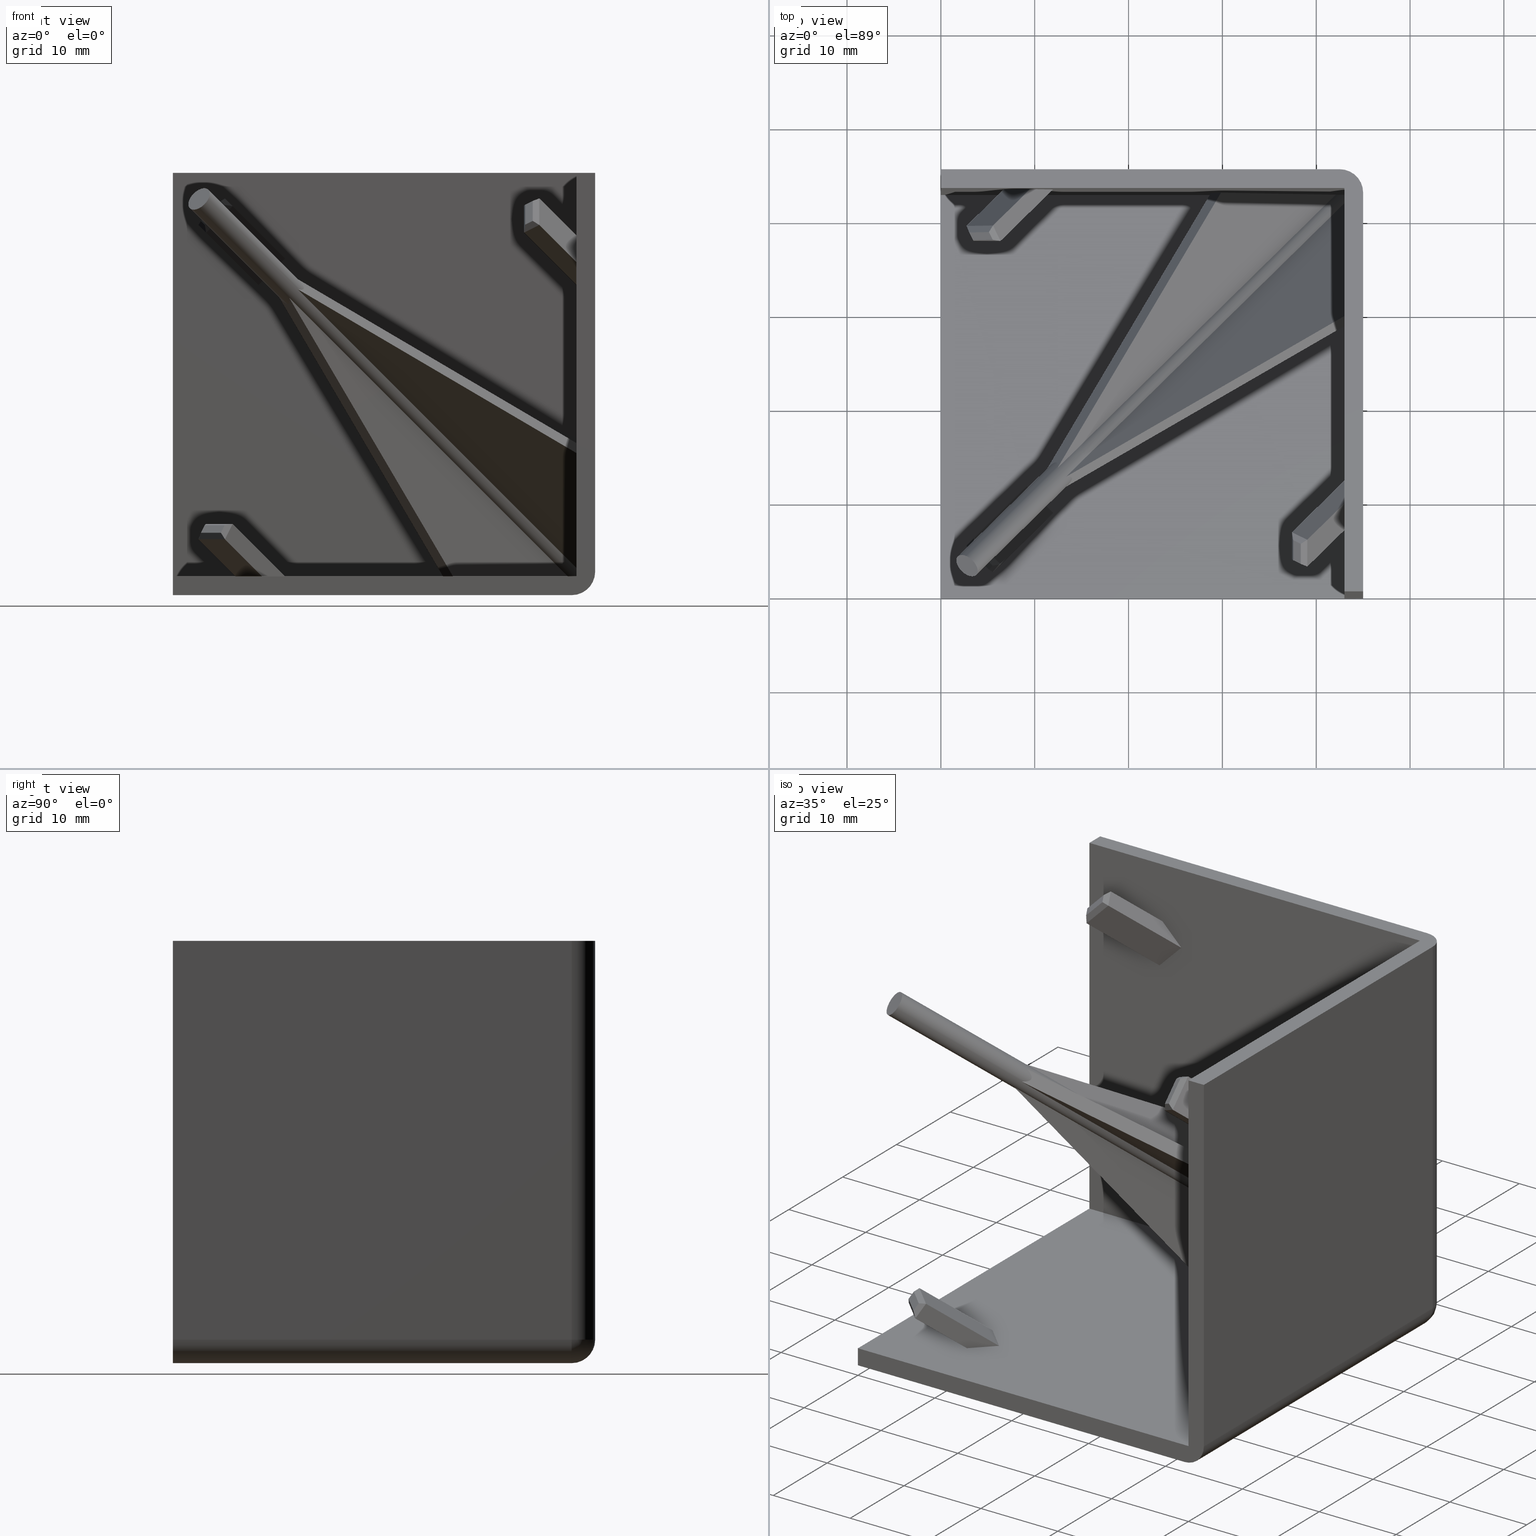
[diagram: canonical four-view strip — front | top / right | iso, engineering-drawing reading convention]
A machine part, canonical four-view strip (front | top / right | iso — engineering-drawing reading convention). The complete STEP part file that produces these views, byte-faithful:
ISO-10303-21;
HEADER;
/* Generated by software containing ST-Developer
 * from STEP Tools, Inc. (www.steptools.com) 
 */

FILE_DESCRIPTION(
/* description */ ('TAPPO QUADRO 3 VIE SERIE 45 NERO'),
/* implementation_level */ '2;1');

FILE_NAME(
/* name */ 
'C:\\Users\\tecnico7\\Desktop\\NUOVI DISEGNI 3D\\CTPTG0000010.stp',
/* time_stamp */ '2022-11-21T16:19:55+01:00',
/* author */ ('tecnico7'),
/* organization */ (''),
/* preprocessor_version */ 'ST-DEVELOPER v18.1',
/* originating_system */ 'Autodesk Inventor 2022',
/* authorisation */ '');

FILE_SCHEMA (('AUTOMOTIVE_DESIGN { 1 0 10303 214 3 1 1 }'));
ENDSEC;

DATA;
#10=MECHANICAL_DESIGN_GEOMETRIC_PRESENTATION_REPRESENTATION('',(#13),#1490);
#11=SHAPE_REPRESENTATION_RELATIONSHIP('SRR','None',#1497,#12);
#12=ADVANCED_BREP_SHAPE_REPRESENTATION('',(#14),#1489);
#13=STYLED_ITEM('',(#1506),#14);
#14=MANIFOLD_SOLID_BREP('Solido3',#900);
#15=SPHERICAL_SURFACE('',#961,2.5);
#16=FACE_BOUND('',#118,.T.);
#17=FACE_BOUND('',#124,.T.);
#18=FACE_BOUND('',#126,.T.);
#19=PLANE('',#935);
#20=PLANE('',#936);
#21=PLANE('',#938);
#22=PLANE('',#939);
#23=PLANE('',#940);
#24=PLANE('',#942);
#25=PLANE('',#943);
#26=PLANE('',#944);
#27=PLANE('',#945);
#28=PLANE('',#947);
#29=PLANE('',#948);
#30=PLANE('',#949);
#31=PLANE('',#950);
#32=PLANE('',#951);
#33=PLANE('',#952);
#34=PLANE('',#953);
#35=PLANE('',#954);
#36=PLANE('',#955);
#37=PLANE('',#956);
#38=PLANE('',#964);
#39=PLANE('',#965);
#40=PLANE('',#966);
#41=PLANE('',#967);
#42=PLANE('',#968);
#43=PLANE('',#969);
#44=PLANE('',#970);
#45=PLANE('',#971);
#46=PLANE('',#972);
#47=PLANE('',#973);
#48=PLANE('',#974);
#49=PLANE('',#975);
#50=PLANE('',#976);
#51=PLANE('',#977);
#52=PLANE('',#978);
#53=PLANE('',#979);
#54=PLANE('',#980);
#55=PLANE('',#981);
#56=PLANE('',#982);
#57=PLANE('',#983);
#58=PLANE('',#984);
#59=PLANE('',#985);
#60=PLANE('',#986);
#61=PLANE('',#987);
#62=PLANE('',#988);
#63=PLANE('',#989);
#64=PLANE('',#990);
#65=FACE_OUTER_BOUND('',#116,.T.);
#66=FACE_OUTER_BOUND('',#117,.T.);
#67=FACE_OUTER_BOUND('',#119,.T.);
#68=FACE_OUTER_BOUND('',#120,.T.);
#69=FACE_OUTER_BOUND('',#121,.T.);
#70=FACE_OUTER_BOUND('',#122,.T.);
#71=FACE_OUTER_BOUND('',#123,.T.);
#72=FACE_OUTER_BOUND('',#125,.T.);
#73=FACE_OUTER_BOUND('',#127,.T.);
#74=FACE_OUTER_BOUND('',#128,.T.);
#75=FACE_OUTER_BOUND('',#129,.T.);
#76=FACE_OUTER_BOUND('',#130,.T.);
#77=FACE_OUTER_BOUND('',#131,.T.);
#78=FACE_OUTER_BOUND('',#132,.T.);
#79=FACE_OUTER_BOUND('',#133,.T.);
#80=FACE_OUTER_BOUND('',#134,.T.);
#81=FACE_OUTER_BOUND('',#135,.T.);
#82=FACE_OUTER_BOUND('',#136,.T.);
#83=FACE_OUTER_BOUND('',#137,.T.);
#84=FACE_OUTER_BOUND('',#138,.T.);
#85=FACE_OUTER_BOUND('',#139,.T.);
#86=FACE_OUTER_BOUND('',#140,.T.);
#87=FACE_OUTER_BOUND('',#141,.T.);
#88=FACE_OUTER_BOUND('',#142,.T.);
#89=FACE_OUTER_BOUND('',#143,.T.);
#90=FACE_OUTER_BOUND('',#144,.T.);
#91=FACE_OUTER_BOUND('',#145,.T.);
#92=FACE_OUTER_BOUND('',#146,.T.);
#93=FACE_OUTER_BOUND('',#147,.T.);
#94=FACE_OUTER_BOUND('',#148,.T.);
#95=FACE_OUTER_BOUND('',#149,.T.);
#96=FACE_OUTER_BOUND('',#150,.T.);
#97=FACE_OUTER_BOUND('',#151,.T.);
#98=FACE_OUTER_BOUND('',#152,.T.);
#99=FACE_OUTER_BOUND('',#153,.T.);
#100=FACE_OUTER_BOUND('',#154,.T.);
#101=FACE_OUTER_BOUND('',#155,.T.);
#102=FACE_OUTER_BOUND('',#156,.T.);
#103=FACE_OUTER_BOUND('',#157,.T.);
#104=FACE_OUTER_BOUND('',#158,.T.);
#105=FACE_OUTER_BOUND('',#159,.T.);
#106=FACE_OUTER_BOUND('',#160,.T.);
#107=FACE_OUTER_BOUND('',#161,.T.);
#108=FACE_OUTER_BOUND('',#162,.T.);
#109=FACE_OUTER_BOUND('',#163,.T.);
#110=FACE_OUTER_BOUND('',#164,.T.);
#111=FACE_OUTER_BOUND('',#165,.T.);
#112=FACE_OUTER_BOUND('',#166,.T.);
#113=FACE_OUTER_BOUND('',#167,.T.);
#114=FACE_OUTER_BOUND('',#168,.T.);
#115=FACE_OUTER_BOUND('',#169,.T.);
#116=EDGE_LOOP('',(#599,#600,#601,#602,#603,#604,#605,#606,#607,#608,#609,
#610,#611,#612,#613,#614,#615,#616,#617));
#117=EDGE_LOOP('',(#618,#619,#620,#621,#622,#623,#624,#625,#626));
#118=EDGE_LOOP('',(#627,#628,#629,#630));
#119=EDGE_LOOP('',(#631,#632,#633,#634,#635,#636,#637));
#120=EDGE_LOOP('',(#638,#639,#640,#641));
#121=EDGE_LOOP('',(#642,#643,#644,#645));
#122=EDGE_LOOP('',(#646,#647,#648,#649,#650,#651,#652));
#123=EDGE_LOOP('',(#653,#654,#655,#656,#657,#658,#659,#660,#661));
#124=EDGE_LOOP('',(#662,#663,#664,#665));
#125=EDGE_LOOP('',(#666,#667,#668,#669,#670,#671,#672,#673,#674));
#126=EDGE_LOOP('',(#675,#676,#677,#678));
#127=EDGE_LOOP('',(#679,#680,#681,#682));
#128=EDGE_LOOP('',(#683,#684,#685,#686,#687,#688,#689));
#129=EDGE_LOOP('',(#690));
#130=EDGE_LOOP('',(#691,#692,#693,#694));
#131=EDGE_LOOP('',(#695,#696,#697));
#132=EDGE_LOOP('',(#698,#699,#700));
#133=EDGE_LOOP('',(#701,#702,#703,#704,#705));
#134=EDGE_LOOP('',(#706,#707,#708));
#135=EDGE_LOOP('',(#709,#710,#711));
#136=EDGE_LOOP('',(#712,#713,#714,#715));
#137=EDGE_LOOP('',(#716,#717,#718));
#138=EDGE_LOOP('',(#719,#720,#721));
#139=EDGE_LOOP('',(#722,#723,#724,#725));
#140=EDGE_LOOP('',(#726,#727,#728,#729));
#141=EDGE_LOOP('',(#730,#731,#732));
#142=EDGE_LOOP('',(#733,#734,#735,#736));
#143=EDGE_LOOP('',(#737,#738,#739,#740));
#144=EDGE_LOOP('',(#741,#742,#743,#744));
#145=EDGE_LOOP('',(#745,#746,#747,#748));
#146=EDGE_LOOP('',(#749,#750,#751,#752));
#147=EDGE_LOOP('',(#753,#754,#755,#756));
#148=EDGE_LOOP('',(#757,#758,#759,#760));
#149=EDGE_LOOP('',(#761,#762,#763,#764));
#150=EDGE_LOOP('',(#765,#766,#767,#768));
#151=EDGE_LOOP('',(#769,#770,#771,#772));
#152=EDGE_LOOP('',(#773,#774,#775,#776));
#153=EDGE_LOOP('',(#777,#778,#779,#780));
#154=EDGE_LOOP('',(#781,#782,#783,#784));
#155=EDGE_LOOP('',(#785,#786,#787,#788));
#156=EDGE_LOOP('',(#789,#790,#791,#792));
#157=EDGE_LOOP('',(#793,#794,#795,#796));
#158=EDGE_LOOP('',(#797,#798,#799,#800));
#159=EDGE_LOOP('',(#801,#802,#803,#804));
#160=EDGE_LOOP('',(#805,#806,#807,#808));
#161=EDGE_LOOP('',(#809,#810,#811,#812));
#162=EDGE_LOOP('',(#813,#814,#815,#816));
#163=EDGE_LOOP('',(#817,#818,#819,#820));
#164=EDGE_LOOP('',(#821,#822,#823,#824));
#165=EDGE_LOOP('',(#825,#826,#827,#828));
#166=EDGE_LOOP('',(#829,#830,#831,#832));
#167=EDGE_LOOP('',(#833,#834,#835,#836));
#168=EDGE_LOOP('',(#837,#838,#839,#840));
#169=EDGE_LOOP('',(#841,#842,#843,#844));
#170=CIRCLE('',#928,1.4);
#171=CIRCLE('',#937,2.5);
#172=CIRCLE('',#941,2.5);
#173=CIRCLE('',#946,2.5);
#174=CIRCLE('',#958,2.5);
#175=CIRCLE('',#960,2.5);
#176=CIRCLE('',#962,2.5);
#177=LINE('',#1241,#283);
#178=LINE('',#1247,#284);
#179=LINE('',#1251,#285);
#180=LINE('',#1256,#286);
#181=LINE('',#1262,#287);
#182=LINE('',#1266,#288);
#183=LINE('',#1271,#289);
#184=LINE('',#1275,#290);
#185=LINE('',#1276,#291);
#186=LINE('',#1278,#292);
#187=LINE('',#1280,#293);
#188=LINE('',#1282,#294);
#189=LINE('',#1283,#295);
#190=LINE('',#1284,#296);
#191=LINE('',#1287,#297);
#192=LINE('',#1289,#298);
#193=LINE('',#1291,#299);
#194=LINE('',#1292,#300);
#195=LINE('',#1296,#301);
#196=LINE('',#1300,#302);
#197=LINE('',#1301,#303);
#198=LINE('',#1303,#304);
#199=LINE('',#1304,#305);
#200=LINE('',#1307,#306);
#201=LINE('',#1309,#307);
#202=LINE('',#1310,#308);
#203=LINE('',#1314,#309);
#204=LINE('',#1316,#310);
#205=LINE('',#1318,#311);
#206=LINE('',#1319,#312);
#207=LINE('',#1322,#313);
#208=LINE('',#1325,#314);
#209=LINE('',#1326,#315);
#210=LINE('',#1329,#316);
#211=LINE('',#1331,#317);
#212=LINE('',#1332,#318);
#213=LINE('',#1334,#319);
#214=LINE('',#1335,#320);
#215=LINE('',#1338,#321);
#216=LINE('',#1340,#322);
#217=LINE('',#1342,#323);
#218=LINE('',#1343,#324);
#219=LINE('',#1346,#325);
#220=LINE('',#1348,#326);
#221=LINE('',#1349,#327);
#222=LINE('',#1350,#328);
#223=LINE('',#1353,#329);
#224=LINE('',#1355,#330);
#225=LINE('',#1357,#331);
#226=LINE('',#1358,#332);
#227=LINE('',#1361,#333);
#228=LINE('',#1362,#334);
#229=LINE('',#1367,#335);
#230=LINE('',#1368,#336);
#231=LINE('',#1372,#337);
#232=LINE('',#1373,#338);
#233=LINE('',#1377,#339);
#234=LINE('',#1378,#340);
#235=LINE('',#1390,#341);
#236=LINE('',#1392,#342);
#237=LINE('',#1393,#343);
#238=LINE('',#1396,#344);
#239=LINE('',#1397,#345);
#240=LINE('',#1400,#346);
#241=LINE('',#1401,#347);
#242=LINE('',#1403,#348);
#243=LINE('',#1407,#349);
#244=LINE('',#1409,#350);
#245=LINE('',#1411,#351);
#246=LINE('',#1412,#352);
#247=LINE('',#1415,#353);
#248=LINE('',#1417,#354);
#249=LINE('',#1418,#355);
#250=LINE('',#1421,#356);
#251=LINE('',#1422,#357);
#252=LINE('',#1425,#358);
#253=LINE('',#1426,#359);
#254=LINE('',#1428,#360);
#255=LINE('',#1432,#361);
#256=LINE('',#1434,#362);
#257=LINE('',#1436,#363);
#258=LINE('',#1437,#364);
#259=LINE('',#1440,#365);
#260=LINE('',#1442,#366);
#261=LINE('',#1443,#367);
#262=LINE('',#1446,#368);
#263=LINE('',#1447,#369);
#264=LINE('',#1450,#370);
#265=LINE('',#1451,#371);
#266=LINE('',#1453,#372);
#267=LINE('',#1457,#373);
#268=LINE('',#1459,#374);
#269=LINE('',#1461,#375);
#270=LINE('',#1462,#376);
#271=LINE('',#1464,#377);
#272=LINE('',#1465,#378);
#273=LINE('',#1467,#379);
#274=LINE('',#1469,#380);
#275=LINE('',#1472,#381);
#276=LINE('',#1473,#382);
#277=LINE('',#1475,#383);
#278=LINE('',#1477,#384);
#279=LINE('',#1480,#385);
#280=LINE('',#1481,#386);
#281=LINE('',#1483,#387);
#282=LINE('',#1485,#388);
#283=VECTOR('',#997,1000.);
#284=VECTOR('',#1002,1000.);
#285=VECTOR('',#1005,1.4);
#286=VECTOR('',#1010,1000.);
#287=VECTOR('',#1015,1000.);
#288=VECTOR('',#1018,1000.);
#289=VECTOR('',#1023,1000.);
#290=VECTOR('',#1026,1000.);
#291=VECTOR('',#1027,1000.);
#292=VECTOR('',#1028,1000.);
#293=VECTOR('',#1029,1000.);
#294=VECTOR('',#1030,1000.);
#295=VECTOR('',#1031,1000.);
#296=VECTOR('',#1032,1000.);
#297=VECTOR('',#1033,1000.);
#298=VECTOR('',#1034,1000.);
#299=VECTOR('',#1035,1000.);
#300=VECTOR('',#1036,1000.);
#301=VECTOR('',#1039,1000.);
#302=VECTOR('',#1042,1000.);
#303=VECTOR('',#1043,1000.);
#304=VECTOR('',#1044,1000.);
#305=VECTOR('',#1045,1000.);
#306=VECTOR('',#1048,1000.);
#307=VECTOR('',#1049,1000.);
#308=VECTOR('',#1050,1000.);
#309=VECTOR('',#1053,1000.);
#310=VECTOR('',#1054,1000.);
#311=VECTOR('',#1055,1000.);
#312=VECTOR('',#1056,1000.);
#313=VECTOR('',#1059,1000.);
#314=VECTOR('',#1062,1000.);
#315=VECTOR('',#1063,1000.);
#316=VECTOR('',#1066,1000.);
#317=VECTOR('',#1067,1000.);
#318=VECTOR('',#1068,1000.);
#319=VECTOR('',#1069,1000.);
#320=VECTOR('',#1070,1000.);
#321=VECTOR('',#1071,1000.);
#322=VECTOR('',#1072,1000.);
#323=VECTOR('',#1073,1000.);
#324=VECTOR('',#1074,1000.);
#325=VECTOR('',#1077,1000.);
#326=VECTOR('',#1078,1000.);
#327=VECTOR('',#1079,1000.);
#328=VECTOR('',#1080,1000.);
#329=VECTOR('',#1081,1000.);
#330=VECTOR('',#1082,1000.);
#331=VECTOR('',#1083,1000.);
#332=VECTOR('',#1084,1000.);
#333=VECTOR('',#1087,1000.);
#334=VECTOR('',#1088,1000.);
#335=VECTOR('',#1097,1000.);
#336=VECTOR('',#1098,1000.);
#337=VECTOR('',#1105,1000.);
#338=VECTOR('',#1106,1000.);
#339=VECTOR('',#1113,1000.);
#340=VECTOR('',#1114,1000.);
#341=VECTOR('',#1135,1000.);
#342=VECTOR('',#1136,1000.);
#343=VECTOR('',#1137,1000.);
#344=VECTOR('',#1140,1000.);
#345=VECTOR('',#1141,1000.);
#346=VECTOR('',#1144,1000.);
#347=VECTOR('',#1145,1000.);
#348=VECTOR('',#1148,1000.);
#349=VECTOR('',#1151,1000.);
#350=VECTOR('',#1152,1000.);
#351=VECTOR('',#1153,1000.);
#352=VECTOR('',#1154,1000.);
#353=VECTOR('',#1157,1000.);
#354=VECTOR('',#1158,1000.);
#355=VECTOR('',#1159,1000.);
#356=VECTOR('',#1162,1000.);
#357=VECTOR('',#1163,1000.);
#358=VECTOR('',#1166,1000.);
#359=VECTOR('',#1167,1000.);
#360=VECTOR('',#1170,1000.);
#361=VECTOR('',#1173,1000.);
#362=VECTOR('',#1174,1000.);
#363=VECTOR('',#1175,1000.);
#364=VECTOR('',#1176,1000.);
#365=VECTOR('',#1179,1000.);
#366=VECTOR('',#1180,1000.);
#367=VECTOR('',#1181,1000.);
#368=VECTOR('',#1184,1000.);
#369=VECTOR('',#1185,1000.);
#370=VECTOR('',#1188,1000.);
#371=VECTOR('',#1189,1000.);
#372=VECTOR('',#1192,1000.);
#373=VECTOR('',#1195,1000.);
#374=VECTOR('',#1196,1000.);
#375=VECTOR('',#1197,1000.);
#376=VECTOR('',#1198,1000.);
#377=VECTOR('',#1201,1000.);
#378=VECTOR('',#1202,1000.);
#379=VECTOR('',#1205,1000.);
#380=VECTOR('',#1208,1000.);
#381=VECTOR('',#1213,1000.);
#382=VECTOR('',#1214,1000.);
#383=VECTOR('',#1217,1000.);
#384=VECTOR('',#1220,1000.);
#385=VECTOR('',#1225,1000.);
#386=VECTOR('',#1226,1000.);
#387=VECTOR('',#1229,1000.);
#388=VECTOR('',#1232,1000.);
#389=ELLIPSE('',#924,5.40918687583893,1.40000042688381);
#390=ELLIPSE('',#925,2.42487112918362,1.39999999979648);
#391=ELLIPSE('',#926,2.42487112805241,1.39999999909692);
#392=ELLIPSE('',#927,5.40918541935006,1.40000015049565);
#393=ELLIPSE('',#929,5.40918541935006,1.40000015049565);
#394=ELLIPSE('',#930,2.42487113052945,1.40000000000576);
#395=ELLIPSE('',#931,2.42487113240126,1.40000000060693);
#396=ELLIPSE('',#932,5.40918462721993,1.40000000000014);
#397=ELLIPSE('',#933,2.42487113249768,1.40000000066487);
#398=ELLIPSE('',#934,2.4248711310375,1.40000000028682);
#399=VERTEX_POINT('',#1237);
#400=VERTEX_POINT('',#1238);
#401=VERTEX_POINT('',#1240);
#402=VERTEX_POINT('',#1242);
#403=VERTEX_POINT('',#1244);
#404=VERTEX_POINT('',#1246);
#405=VERTEX_POINT('',#1248);
#406=VERTEX_POINT('',#1250);
#407=VERTEX_POINT('',#1253);
#408=VERTEX_POINT('',#1255);
#409=VERTEX_POINT('',#1257);
#410=VERTEX_POINT('',#1259);
#411=VERTEX_POINT('',#1261);
#412=VERTEX_POINT('',#1263);
#413=VERTEX_POINT('',#1265);
#414=VERTEX_POINT('',#1267);
#415=VERTEX_POINT('',#1269);
#416=VERTEX_POINT('',#1273);
#417=VERTEX_POINT('',#1274);
#418=VERTEX_POINT('',#1277);
#419=VERTEX_POINT('',#1279);
#420=VERTEX_POINT('',#1281);
#421=VERTEX_POINT('',#1285);
#422=VERTEX_POINT('',#1286);
#423=VERTEX_POINT('',#1288);
#424=VERTEX_POINT('',#1290);
#425=VERTEX_POINT('',#1294);
#426=VERTEX_POINT('',#1295);
#427=VERTEX_POINT('',#1297);
#428=VERTEX_POINT('',#1299);
#429=VERTEX_POINT('',#1302);
#430=VERTEX_POINT('',#1306);
#431=VERTEX_POINT('',#1308);
#432=VERTEX_POINT('',#1312);
#433=VERTEX_POINT('',#1313);
#434=VERTEX_POINT('',#1315);
#435=VERTEX_POINT('',#1317);
#436=VERTEX_POINT('',#1321);
#437=VERTEX_POINT('',#1324);
#438=VERTEX_POINT('',#1328);
#439=VERTEX_POINT('',#1330);
#440=VERTEX_POINT('',#1333);
#441=VERTEX_POINT('',#1336);
#442=VERTEX_POINT('',#1337);
#443=VERTEX_POINT('',#1339);
#444=VERTEX_POINT('',#1341);
#445=VERTEX_POINT('',#1345);
#446=VERTEX_POINT('',#1347);
#447=VERTEX_POINT('',#1351);
#448=VERTEX_POINT('',#1352);
#449=VERTEX_POINT('',#1354);
#450=VERTEX_POINT('',#1356);
#451=VERTEX_POINT('',#1360);
#452=VERTEX_POINT('',#1389);
#453=VERTEX_POINT('',#1391);
#454=VERTEX_POINT('',#1395);
#455=VERTEX_POINT('',#1399);
#456=VERTEX_POINT('',#1405);
#457=VERTEX_POINT('',#1406);
#458=VERTEX_POINT('',#1408);
#459=VERTEX_POINT('',#1410);
#460=VERTEX_POINT('',#1414);
#461=VERTEX_POINT('',#1416);
#462=VERTEX_POINT('',#1420);
#463=VERTEX_POINT('',#1424);
#464=VERTEX_POINT('',#1430);
#465=VERTEX_POINT('',#1431);
#466=VERTEX_POINT('',#1433);
#467=VERTEX_POINT('',#1435);
#468=VERTEX_POINT('',#1439);
#469=VERTEX_POINT('',#1441);
#470=VERTEX_POINT('',#1445);
#471=VERTEX_POINT('',#1449);
#472=VERTEX_POINT('',#1455);
#473=VERTEX_POINT('',#1456);
#474=VERTEX_POINT('',#1458);
#475=VERTEX_POINT('',#1460);
#476=EDGE_CURVE('',#399,#400,#389,.T.);
#477=EDGE_CURVE('',#401,#400,#177,.T.);
#478=EDGE_CURVE('',#401,#402,#390,.T.);
#479=EDGE_CURVE('',#402,#403,#391,.T.);
#480=EDGE_CURVE('',#403,#404,#178,.T.);
#481=EDGE_CURVE('',#404,#405,#392,.T.);
#482=EDGE_CURVE('',#405,#406,#179,.T.);
#483=EDGE_CURVE('',#406,#406,#170,.T.);
#484=EDGE_CURVE('',#405,#407,#393,.T.);
#485=EDGE_CURVE('',#408,#407,#180,.T.);
#486=EDGE_CURVE('',#408,#409,#394,.T.);
#487=EDGE_CURVE('',#409,#410,#395,.T.);
#488=EDGE_CURVE('',#410,#411,#181,.T.);
#489=EDGE_CURVE('',#411,#412,#396,.T.);
#490=EDGE_CURVE('',#413,#412,#182,.T.);
#491=EDGE_CURVE('',#413,#414,#397,.T.);
#492=EDGE_CURVE('',#414,#415,#398,.T.);
#493=EDGE_CURVE('',#415,#399,#183,.T.);
#494=EDGE_CURVE('',#416,#417,#184,.T.);
#495=EDGE_CURVE('',#417,#403,#185,.T.);
#496=EDGE_CURVE('',#402,#418,#186,.T.);
#497=EDGE_CURVE('',#419,#418,#187,.T.);
#498=EDGE_CURVE('',#420,#419,#188,.T.);
#499=EDGE_CURVE('',#420,#409,#189,.T.);
#500=EDGE_CURVE('',#416,#408,#190,.T.);
#501=EDGE_CURVE('',#421,#422,#191,.T.);
#502=EDGE_CURVE('',#422,#423,#192,.T.);
#503=EDGE_CURVE('',#423,#424,#193,.T.);
#504=EDGE_CURVE('',#424,#421,#194,.T.);
#505=EDGE_CURVE('',#425,#426,#195,.T.);
#506=EDGE_CURVE('',#425,#427,#171,.T.);
#507=EDGE_CURVE('',#427,#428,#196,.T.);
#508=EDGE_CURVE('',#419,#428,#197,.T.);
#509=EDGE_CURVE('',#418,#429,#198,.T.);
#510=EDGE_CURVE('',#426,#429,#199,.T.);
#511=EDGE_CURVE('',#430,#426,#200,.T.);
#512=EDGE_CURVE('',#430,#431,#201,.T.);
#513=EDGE_CURVE('',#431,#425,#202,.T.);
#514=EDGE_CURVE('',#432,#433,#203,.T.);
#515=EDGE_CURVE('',#433,#434,#204,.T.);
#516=EDGE_CURVE('',#435,#434,#205,.T.);
#517=EDGE_CURVE('',#432,#435,#206,.T.);
#518=EDGE_CURVE('',#428,#436,#207,.T.);
#519=EDGE_CURVE('',#436,#432,#172,.T.);
#520=EDGE_CURVE('',#437,#435,#208,.T.);
#521=EDGE_CURVE('',#420,#437,#209,.T.);
#522=EDGE_CURVE('',#438,#413,#210,.T.);
#523=EDGE_CURVE('',#438,#439,#211,.T.);
#524=EDGE_CURVE('',#439,#410,#212,.T.);
#525=EDGE_CURVE('',#440,#437,#213,.T.);
#526=EDGE_CURVE('',#414,#440,#214,.T.);
#527=EDGE_CURVE('',#441,#442,#215,.T.);
#528=EDGE_CURVE('',#442,#443,#216,.T.);
#529=EDGE_CURVE('',#443,#444,#217,.T.);
#530=EDGE_CURVE('',#444,#441,#218,.T.);
#531=EDGE_CURVE('',#445,#401,#219,.T.);
#532=EDGE_CURVE('',#445,#446,#220,.T.);
#533=EDGE_CURVE('',#446,#415,#221,.T.);
#534=EDGE_CURVE('',#429,#440,#222,.T.);
#535=EDGE_CURVE('',#447,#448,#223,.T.);
#536=EDGE_CURVE('',#448,#449,#224,.T.);
#537=EDGE_CURVE('',#449,#450,#225,.T.);
#538=EDGE_CURVE('',#450,#447,#226,.T.);
#539=EDGE_CURVE('',#427,#451,#227,.T.);
#540=EDGE_CURVE('',#451,#436,#228,.T.);
#541=EDGE_CURVE('',#434,#430,#173,.T.);
#542=EDGE_CURVE('',#400,#445,#229,.T.);
#543=EDGE_CURVE('',#399,#446,#230,.T.);
#544=EDGE_CURVE('',#407,#416,#231,.T.);
#545=EDGE_CURVE('',#404,#417,#232,.T.);
#546=EDGE_CURVE('',#412,#438,#233,.T.);
#547=EDGE_CURVE('',#411,#439,#234,.T.);
#548=EDGE_CURVE('',#451,#431,#174,.T.);
#549=EDGE_CURVE('',#433,#451,#175,.T.);
#550=EDGE_CURVE('',#433,#431,#176,.T.);
#551=EDGE_CURVE('',#441,#452,#235,.T.);
#552=EDGE_CURVE('',#452,#453,#236,.T.);
#553=EDGE_CURVE('',#442,#453,#237,.T.);
#554=EDGE_CURVE('',#444,#454,#238,.T.);
#555=EDGE_CURVE('',#454,#452,#239,.T.);
#556=EDGE_CURVE('',#443,#455,#240,.T.);
#557=EDGE_CURVE('',#455,#454,#241,.T.);
#558=EDGE_CURVE('',#453,#455,#242,.T.);
#559=EDGE_CURVE('',#456,#457,#243,.T.);
#560=EDGE_CURVE('',#457,#458,#244,.T.);
#561=EDGE_CURVE('',#458,#459,#245,.T.);
#562=EDGE_CURVE('',#459,#456,#246,.T.);
#563=EDGE_CURVE('',#421,#460,#247,.T.);
#564=EDGE_CURVE('',#460,#461,#248,.T.);
#565=EDGE_CURVE('',#422,#461,#249,.T.);
#566=EDGE_CURVE('',#424,#462,#250,.T.);
#567=EDGE_CURVE('',#462,#460,#251,.T.);
#568=EDGE_CURVE('',#423,#463,#252,.T.);
#569=EDGE_CURVE('',#463,#462,#253,.T.);
#570=EDGE_CURVE('',#461,#463,#254,.T.);
#571=EDGE_CURVE('',#464,#465,#255,.T.);
#572=EDGE_CURVE('',#465,#466,#256,.T.);
#573=EDGE_CURVE('',#466,#467,#257,.T.);
#574=EDGE_CURVE('',#467,#464,#258,.T.);
#575=EDGE_CURVE('',#447,#468,#259,.T.);
#576=EDGE_CURVE('',#468,#469,#260,.T.);
#577=EDGE_CURVE('',#448,#469,#261,.T.);
#578=EDGE_CURVE('',#450,#470,#262,.T.);
#579=EDGE_CURVE('',#470,#468,#263,.T.);
#580=EDGE_CURVE('',#449,#471,#264,.T.);
#581=EDGE_CURVE('',#471,#470,#265,.T.);
#582=EDGE_CURVE('',#469,#471,#266,.T.);
#583=EDGE_CURVE('',#472,#473,#267,.T.);
#584=EDGE_CURVE('',#473,#474,#268,.T.);
#585=EDGE_CURVE('',#474,#475,#269,.T.);
#586=EDGE_CURVE('',#475,#472,#270,.T.);
#587=EDGE_CURVE('',#468,#475,#271,.T.);
#588=EDGE_CURVE('',#472,#470,#272,.T.);
#589=EDGE_CURVE('',#473,#471,#273,.T.);
#590=EDGE_CURVE('',#469,#474,#274,.T.);
#591=EDGE_CURVE('',#460,#467,#275,.T.);
#592=EDGE_CURVE('',#464,#462,#276,.T.);
#593=EDGE_CURVE('',#465,#463,#277,.T.);
#594=EDGE_CURVE('',#461,#466,#278,.T.);
#595=EDGE_CURVE('',#452,#459,#279,.T.);
#596=EDGE_CURVE('',#456,#454,#280,.T.);
#597=EDGE_CURVE('',#457,#455,#281,.T.);
#598=EDGE_CURVE('',#453,#458,#282,.T.);
#599=ORIENTED_EDGE('',*,*,#476,.T.);
#600=ORIENTED_EDGE('',*,*,#477,.F.);
#601=ORIENTED_EDGE('',*,*,#478,.T.);
#602=ORIENTED_EDGE('',*,*,#479,.T.);
#603=ORIENTED_EDGE('',*,*,#480,.T.);
#604=ORIENTED_EDGE('',*,*,#481,.T.);
#605=ORIENTED_EDGE('',*,*,#482,.T.);
#606=ORIENTED_EDGE('',*,*,#483,.T.);
#607=ORIENTED_EDGE('',*,*,#482,.F.);
#608=ORIENTED_EDGE('',*,*,#484,.T.);
#609=ORIENTED_EDGE('',*,*,#485,.F.);
#610=ORIENTED_EDGE('',*,*,#486,.T.);
#611=ORIENTED_EDGE('',*,*,#487,.T.);
#612=ORIENTED_EDGE('',*,*,#488,.T.);
#613=ORIENTED_EDGE('',*,*,#489,.T.);
#614=ORIENTED_EDGE('',*,*,#490,.F.);
#615=ORIENTED_EDGE('',*,*,#491,.T.);
#616=ORIENTED_EDGE('',*,*,#492,.T.);
#617=ORIENTED_EDGE('',*,*,#493,.T.);
#618=ORIENTED_EDGE('',*,*,#494,.T.);
#619=ORIENTED_EDGE('',*,*,#495,.T.);
#620=ORIENTED_EDGE('',*,*,#479,.F.);
#621=ORIENTED_EDGE('',*,*,#496,.T.);
#622=ORIENTED_EDGE('',*,*,#497,.F.);
#623=ORIENTED_EDGE('',*,*,#498,.F.);
#624=ORIENTED_EDGE('',*,*,#499,.T.);
#625=ORIENTED_EDGE('',*,*,#486,.F.);
#626=ORIENTED_EDGE('',*,*,#500,.F.);
#627=ORIENTED_EDGE('',*,*,#501,.T.);
#628=ORIENTED_EDGE('',*,*,#502,.T.);
#629=ORIENTED_EDGE('',*,*,#503,.T.);
#630=ORIENTED_EDGE('',*,*,#504,.T.);
#631=ORIENTED_EDGE('',*,*,#505,.F.);
#632=ORIENTED_EDGE('',*,*,#506,.T.);
#633=ORIENTED_EDGE('',*,*,#507,.T.);
#634=ORIENTED_EDGE('',*,*,#508,.F.);
#635=ORIENTED_EDGE('',*,*,#497,.T.);
#636=ORIENTED_EDGE('',*,*,#509,.T.);
#637=ORIENTED_EDGE('',*,*,#510,.F.);
#638=ORIENTED_EDGE('',*,*,#511,.F.);
#639=ORIENTED_EDGE('',*,*,#512,.T.);
#640=ORIENTED_EDGE('',*,*,#513,.T.);
#641=ORIENTED_EDGE('',*,*,#505,.T.);
#642=ORIENTED_EDGE('',*,*,#514,.T.);
#643=ORIENTED_EDGE('',*,*,#515,.T.);
#644=ORIENTED_EDGE('',*,*,#516,.F.);
#645=ORIENTED_EDGE('',*,*,#517,.F.);
#646=ORIENTED_EDGE('',*,*,#518,.T.);
#647=ORIENTED_EDGE('',*,*,#519,.T.);
#648=ORIENTED_EDGE('',*,*,#517,.T.);
#649=ORIENTED_EDGE('',*,*,#520,.F.);
#650=ORIENTED_EDGE('',*,*,#521,.F.);
#651=ORIENTED_EDGE('',*,*,#498,.T.);
#652=ORIENTED_EDGE('',*,*,#508,.T.);
#653=ORIENTED_EDGE('',*,*,#522,.F.);
#654=ORIENTED_EDGE('',*,*,#523,.T.);
#655=ORIENTED_EDGE('',*,*,#524,.T.);
#656=ORIENTED_EDGE('',*,*,#487,.F.);
#657=ORIENTED_EDGE('',*,*,#499,.F.);
#658=ORIENTED_EDGE('',*,*,#521,.T.);
#659=ORIENTED_EDGE('',*,*,#525,.F.);
#660=ORIENTED_EDGE('',*,*,#526,.F.);
#661=ORIENTED_EDGE('',*,*,#491,.F.);
#662=ORIENTED_EDGE('',*,*,#527,.T.);
#663=ORIENTED_EDGE('',*,*,#528,.T.);
#664=ORIENTED_EDGE('',*,*,#529,.T.);
#665=ORIENTED_EDGE('',*,*,#530,.T.);
#666=ORIENTED_EDGE('',*,*,#531,.F.);
#667=ORIENTED_EDGE('',*,*,#532,.T.);
#668=ORIENTED_EDGE('',*,*,#533,.T.);
#669=ORIENTED_EDGE('',*,*,#492,.F.);
#670=ORIENTED_EDGE('',*,*,#526,.T.);
#671=ORIENTED_EDGE('',*,*,#534,.F.);
#672=ORIENTED_EDGE('',*,*,#509,.F.);
#673=ORIENTED_EDGE('',*,*,#496,.F.);
#674=ORIENTED_EDGE('',*,*,#478,.F.);
#675=ORIENTED_EDGE('',*,*,#535,.T.);
#676=ORIENTED_EDGE('',*,*,#536,.T.);
#677=ORIENTED_EDGE('',*,*,#537,.T.);
#678=ORIENTED_EDGE('',*,*,#538,.T.);
#679=ORIENTED_EDGE('',*,*,#539,.T.);
#680=ORIENTED_EDGE('',*,*,#540,.T.);
#681=ORIENTED_EDGE('',*,*,#518,.F.);
#682=ORIENTED_EDGE('',*,*,#507,.F.);
#683=ORIENTED_EDGE('',*,*,#516,.T.);
#684=ORIENTED_EDGE('',*,*,#541,.T.);
#685=ORIENTED_EDGE('',*,*,#511,.T.);
#686=ORIENTED_EDGE('',*,*,#510,.T.);
#687=ORIENTED_EDGE('',*,*,#534,.T.);
#688=ORIENTED_EDGE('',*,*,#525,.T.);
#689=ORIENTED_EDGE('',*,*,#520,.T.);
#690=ORIENTED_EDGE('',*,*,#483,.F.);
#691=ORIENTED_EDGE('',*,*,#532,.F.);
#692=ORIENTED_EDGE('',*,*,#542,.F.);
#693=ORIENTED_EDGE('',*,*,#476,.F.);
#694=ORIENTED_EDGE('',*,*,#543,.T.);
#695=ORIENTED_EDGE('',*,*,#542,.T.);
#696=ORIENTED_EDGE('',*,*,#531,.T.);
#697=ORIENTED_EDGE('',*,*,#477,.T.);
#698=ORIENTED_EDGE('',*,*,#533,.F.);
#699=ORIENTED_EDGE('',*,*,#543,.F.);
#700=ORIENTED_EDGE('',*,*,#493,.F.);
#701=ORIENTED_EDGE('',*,*,#494,.F.);
#702=ORIENTED_EDGE('',*,*,#544,.F.);
#703=ORIENTED_EDGE('',*,*,#484,.F.);
#704=ORIENTED_EDGE('',*,*,#481,.F.);
#705=ORIENTED_EDGE('',*,*,#545,.T.);
#706=ORIENTED_EDGE('',*,*,#544,.T.);
#707=ORIENTED_EDGE('',*,*,#500,.T.);
#708=ORIENTED_EDGE('',*,*,#485,.T.);
#709=ORIENTED_EDGE('',*,*,#495,.F.);
#710=ORIENTED_EDGE('',*,*,#545,.F.);
#711=ORIENTED_EDGE('',*,*,#480,.F.);
#712=ORIENTED_EDGE('',*,*,#523,.F.);
#713=ORIENTED_EDGE('',*,*,#546,.F.);
#714=ORIENTED_EDGE('',*,*,#489,.F.);
#715=ORIENTED_EDGE('',*,*,#547,.T.);
#716=ORIENTED_EDGE('',*,*,#546,.T.);
#717=ORIENTED_EDGE('',*,*,#522,.T.);
#718=ORIENTED_EDGE('',*,*,#490,.T.);
#719=ORIENTED_EDGE('',*,*,#524,.F.);
#720=ORIENTED_EDGE('',*,*,#547,.F.);
#721=ORIENTED_EDGE('',*,*,#488,.F.);
#722=ORIENTED_EDGE('',*,*,#506,.F.);
#723=ORIENTED_EDGE('',*,*,#513,.F.);
#724=ORIENTED_EDGE('',*,*,#548,.F.);
#725=ORIENTED_EDGE('',*,*,#539,.F.);
#726=ORIENTED_EDGE('',*,*,#519,.F.);
#727=ORIENTED_EDGE('',*,*,#540,.F.);
#728=ORIENTED_EDGE('',*,*,#549,.F.);
#729=ORIENTED_EDGE('',*,*,#514,.F.);
#730=ORIENTED_EDGE('',*,*,#549,.T.);
#731=ORIENTED_EDGE('',*,*,#548,.T.);
#732=ORIENTED_EDGE('',*,*,#550,.F.);
#733=ORIENTED_EDGE('',*,*,#550,.T.);
#734=ORIENTED_EDGE('',*,*,#512,.F.);
#735=ORIENTED_EDGE('',*,*,#541,.F.);
#736=ORIENTED_EDGE('',*,*,#515,.F.);
#737=ORIENTED_EDGE('',*,*,#551,.T.);
#738=ORIENTED_EDGE('',*,*,#552,.T.);
#739=ORIENTED_EDGE('',*,*,#553,.F.);
#740=ORIENTED_EDGE('',*,*,#527,.F.);
#741=ORIENTED_EDGE('',*,*,#554,.T.);
#742=ORIENTED_EDGE('',*,*,#555,.T.);
#743=ORIENTED_EDGE('',*,*,#551,.F.);
#744=ORIENTED_EDGE('',*,*,#530,.F.);
#745=ORIENTED_EDGE('',*,*,#556,.T.);
#746=ORIENTED_EDGE('',*,*,#557,.T.);
#747=ORIENTED_EDGE('',*,*,#554,.F.);
#748=ORIENTED_EDGE('',*,*,#529,.F.);
#749=ORIENTED_EDGE('',*,*,#553,.T.);
#750=ORIENTED_EDGE('',*,*,#558,.T.);
#751=ORIENTED_EDGE('',*,*,#556,.F.);
#752=ORIENTED_EDGE('',*,*,#528,.F.);
#753=ORIENTED_EDGE('',*,*,#559,.T.);
#754=ORIENTED_EDGE('',*,*,#560,.T.);
#755=ORIENTED_EDGE('',*,*,#561,.T.);
#756=ORIENTED_EDGE('',*,*,#562,.T.);
#757=ORIENTED_EDGE('',*,*,#563,.T.);
#758=ORIENTED_EDGE('',*,*,#564,.T.);
#759=ORIENTED_EDGE('',*,*,#565,.F.);
#760=ORIENTED_EDGE('',*,*,#501,.F.);
#761=ORIENTED_EDGE('',*,*,#566,.T.);
#762=ORIENTED_EDGE('',*,*,#567,.T.);
#763=ORIENTED_EDGE('',*,*,#563,.F.);
#764=ORIENTED_EDGE('',*,*,#504,.F.);
#765=ORIENTED_EDGE('',*,*,#568,.T.);
#766=ORIENTED_EDGE('',*,*,#569,.T.);
#767=ORIENTED_EDGE('',*,*,#566,.F.);
#768=ORIENTED_EDGE('',*,*,#503,.F.);
#769=ORIENTED_EDGE('',*,*,#565,.T.);
#770=ORIENTED_EDGE('',*,*,#570,.T.);
#771=ORIENTED_EDGE('',*,*,#568,.F.);
#772=ORIENTED_EDGE('',*,*,#502,.F.);
#773=ORIENTED_EDGE('',*,*,#571,.T.);
#774=ORIENTED_EDGE('',*,*,#572,.T.);
#775=ORIENTED_EDGE('',*,*,#573,.T.);
#776=ORIENTED_EDGE('',*,*,#574,.T.);
#777=ORIENTED_EDGE('',*,*,#575,.T.);
#778=ORIENTED_EDGE('',*,*,#576,.T.);
#779=ORIENTED_EDGE('',*,*,#577,.F.);
#780=ORIENTED_EDGE('',*,*,#535,.F.);
#781=ORIENTED_EDGE('',*,*,#578,.T.);
#782=ORIENTED_EDGE('',*,*,#579,.T.);
#783=ORIENTED_EDGE('',*,*,#575,.F.);
#784=ORIENTED_EDGE('',*,*,#538,.F.);
#785=ORIENTED_EDGE('',*,*,#580,.T.);
#786=ORIENTED_EDGE('',*,*,#581,.T.);
#787=ORIENTED_EDGE('',*,*,#578,.F.);
#788=ORIENTED_EDGE('',*,*,#537,.F.);
#789=ORIENTED_EDGE('',*,*,#577,.T.);
#790=ORIENTED_EDGE('',*,*,#582,.T.);
#791=ORIENTED_EDGE('',*,*,#580,.F.);
#792=ORIENTED_EDGE('',*,*,#536,.F.);
#793=ORIENTED_EDGE('',*,*,#583,.T.);
#794=ORIENTED_EDGE('',*,*,#584,.T.);
#795=ORIENTED_EDGE('',*,*,#585,.T.);
#796=ORIENTED_EDGE('',*,*,#586,.T.);
#797=ORIENTED_EDGE('',*,*,#587,.F.);
#798=ORIENTED_EDGE('',*,*,#579,.F.);
#799=ORIENTED_EDGE('',*,*,#588,.F.);
#800=ORIENTED_EDGE('',*,*,#586,.F.);
#801=ORIENTED_EDGE('',*,*,#588,.T.);
#802=ORIENTED_EDGE('',*,*,#581,.F.);
#803=ORIENTED_EDGE('',*,*,#589,.F.);
#804=ORIENTED_EDGE('',*,*,#583,.F.);
#805=ORIENTED_EDGE('',*,*,#587,.T.);
#806=ORIENTED_EDGE('',*,*,#585,.F.);
#807=ORIENTED_EDGE('',*,*,#590,.F.);
#808=ORIENTED_EDGE('',*,*,#576,.F.);
#809=ORIENTED_EDGE('',*,*,#589,.T.);
#810=ORIENTED_EDGE('',*,*,#582,.F.);
#811=ORIENTED_EDGE('',*,*,#590,.T.);
#812=ORIENTED_EDGE('',*,*,#584,.F.);
#813=ORIENTED_EDGE('',*,*,#591,.F.);
#814=ORIENTED_EDGE('',*,*,#567,.F.);
#815=ORIENTED_EDGE('',*,*,#592,.F.);
#816=ORIENTED_EDGE('',*,*,#574,.F.);
#817=ORIENTED_EDGE('',*,*,#592,.T.);
#818=ORIENTED_EDGE('',*,*,#569,.F.);
#819=ORIENTED_EDGE('',*,*,#593,.F.);
#820=ORIENTED_EDGE('',*,*,#571,.F.);
#821=ORIENTED_EDGE('',*,*,#591,.T.);
#822=ORIENTED_EDGE('',*,*,#573,.F.);
#823=ORIENTED_EDGE('',*,*,#594,.F.);
#824=ORIENTED_EDGE('',*,*,#564,.F.);
#825=ORIENTED_EDGE('',*,*,#593,.T.);
#826=ORIENTED_EDGE('',*,*,#570,.F.);
#827=ORIENTED_EDGE('',*,*,#594,.T.);
#828=ORIENTED_EDGE('',*,*,#572,.F.);
#829=ORIENTED_EDGE('',*,*,#595,.F.);
#830=ORIENTED_EDGE('',*,*,#555,.F.);
#831=ORIENTED_EDGE('',*,*,#596,.F.);
#832=ORIENTED_EDGE('',*,*,#562,.F.);
#833=ORIENTED_EDGE('',*,*,#596,.T.);
#834=ORIENTED_EDGE('',*,*,#557,.F.);
#835=ORIENTED_EDGE('',*,*,#597,.F.);
#836=ORIENTED_EDGE('',*,*,#559,.F.);
#837=ORIENTED_EDGE('',*,*,#595,.T.);
#838=ORIENTED_EDGE('',*,*,#561,.F.);
#839=ORIENTED_EDGE('',*,*,#598,.F.);
#840=ORIENTED_EDGE('',*,*,#552,.F.);
#841=ORIENTED_EDGE('',*,*,#597,.T.);
#842=ORIENTED_EDGE('',*,*,#558,.F.);
#843=ORIENTED_EDGE('',*,*,#598,.T.);
#844=ORIENTED_EDGE('',*,*,#560,.F.);
#845=CYLINDRICAL_SURFACE('',#923,1.4);
#846=CYLINDRICAL_SURFACE('',#957,2.5);
#847=CYLINDRICAL_SURFACE('',#959,2.5);
#848=CYLINDRICAL_SURFACE('',#963,2.5);
#849=ADVANCED_FACE('',(#65),#845,.T.);
#850=ADVANCED_FACE('',(#66,#16),#19,.T.);
#851=ADVANCED_FACE('',(#67),#20,.T.);
#852=ADVANCED_FACE('',(#68),#21,.T.);
#853=ADVANCED_FACE('',(#69),#22,.T.);
#854=ADVANCED_FACE('',(#70),#23,.T.);
#855=ADVANCED_FACE('',(#71,#17),#24,.T.);
#856=ADVANCED_FACE('',(#72,#18),#25,.T.);
#857=ADVANCED_FACE('',(#73),#26,.T.);
#858=ADVANCED_FACE('',(#74),#27,.F.);
#859=ADVANCED_FACE('',(#75),#28,.F.);
#860=ADVANCED_FACE('',(#76),#29,.F.);
#861=ADVANCED_FACE('',(#77),#30,.T.);
#862=ADVANCED_FACE('',(#78),#31,.F.);
#863=ADVANCED_FACE('',(#79),#32,.F.);
#864=ADVANCED_FACE('',(#80),#33,.T.);
#865=ADVANCED_FACE('',(#81),#34,.F.);
#866=ADVANCED_FACE('',(#82),#35,.F.);
#867=ADVANCED_FACE('',(#83),#36,.T.);
#868=ADVANCED_FACE('',(#84),#37,.F.);
#869=ADVANCED_FACE('',(#85),#846,.T.);
#870=ADVANCED_FACE('',(#86),#847,.T.);
#871=ADVANCED_FACE('',(#87),#15,.T.);
#872=ADVANCED_FACE('',(#88),#848,.T.);
#873=ADVANCED_FACE('',(#89),#38,.T.);
#874=ADVANCED_FACE('',(#90),#39,.T.);
#875=ADVANCED_FACE('',(#91),#40,.T.);
#876=ADVANCED_FACE('',(#92),#41,.T.);
#877=ADVANCED_FACE('',(#93),#42,.F.);
#878=ADVANCED_FACE('',(#94),#43,.T.);
#879=ADVANCED_FACE('',(#95),#44,.T.);
#880=ADVANCED_FACE('',(#96),#45,.T.);
#881=ADVANCED_FACE('',(#97),#46,.T.);
#882=ADVANCED_FACE('',(#98),#47,.F.);
#883=ADVANCED_FACE('',(#99),#48,.T.);
#884=ADVANCED_FACE('',(#100),#49,.T.);
#885=ADVANCED_FACE('',(#101),#50,.T.);
#886=ADVANCED_FACE('',(#102),#51,.T.);
#887=ADVANCED_FACE('',(#103),#52,.F.);
#888=ADVANCED_FACE('',(#104),#53,.T.);
#889=ADVANCED_FACE('',(#105),#54,.T.);
#890=ADVANCED_FACE('',(#106),#55,.T.);
#891=ADVANCED_FACE('',(#107),#56,.T.);
#892=ADVANCED_FACE('',(#108),#57,.T.);
#893=ADVANCED_FACE('',(#109),#58,.T.);
#894=ADVANCED_FACE('',(#110),#59,.T.);
#895=ADVANCED_FACE('',(#111),#60,.T.);
#896=ADVANCED_FACE('',(#112),#61,.T.);
#897=ADVANCED_FACE('',(#113),#62,.T.);
#898=ADVANCED_FACE('',(#114),#63,.T.);
#899=ADVANCED_FACE('',(#115),#64,.T.);
#900=CLOSED_SHELL('',(#849,#850,#851,#852,#853,#854,#855,#856,#857,#858,
#859,#860,#861,#862,#863,#864,#865,#866,#867,#868,#869,#870,#871,#872,#873,
#874,#875,#876,#877,#878,#879,#880,#881,#882,#883,#884,#885,#886,#887,#888,
#889,#890,#891,#892,#893,#894,#895,#896,#897,#898,#899));
#901=DERIVED_UNIT_ELEMENT(#904,1.);
#902=DERIVED_UNIT_ELEMENT(#1492,-3.);
#903=DIMENSIONAL_EXPONENTS(1.,0.,0.,0.,0.,0.,0.);
#904=(
CONVERSION_BASED_UNIT('gram',#906)
MASS_UNIT()
NAMED_UNIT(#903)
);
#905=(
MASS_UNIT()
NAMED_UNIT(*)
SI_UNIT(.KILO.,.GRAM.)
);
#906=MASS_MEASURE_WITH_UNIT(MASS_MEASURE(0.001),#905);
#907=DERIVED_UNIT((#901,#902));
#908=MEASURE_REPRESENTATION_ITEM('density measure',
POSITIVE_RATIO_MEASURE(1.13),#907);
#909=PROPERTY_DEFINITION_REPRESENTATION(#914,#911);
#910=PROPERTY_DEFINITION_REPRESENTATION(#915,#912);
#911=REPRESENTATION('material name',(#913),#1489);
#912=REPRESENTATION('density',(#908),#1489);
#913=DESCRIPTIVE_REPRESENTATION_ITEM('NYLON','NYLON');
#914=PROPERTY_DEFINITION('material property','material name',#1499);
#915=PROPERTY_DEFINITION('material property','density of part',#1499);
#916=DATE_TIME_ROLE('creation_date');
#917=APPLIED_DATE_AND_TIME_ASSIGNMENT(#918,#916,(#1499));
#918=DATE_AND_TIME(#919,#920);
#919=CALENDAR_DATE(2020,16,9);
#920=LOCAL_TIME(0,0,0.,#921);
#921=COORDINATED_UNIVERSAL_TIME_OFFSET(0,0,.BEHIND.);
#922=AXIS2_PLACEMENT_3D('placement',#1235,#991,#992);
#923=AXIS2_PLACEMENT_3D('',#1236,#993,#994);
#924=AXIS2_PLACEMENT_3D('',#1239,#995,#996);
#925=AXIS2_PLACEMENT_3D('',#1243,#998,#999);
#926=AXIS2_PLACEMENT_3D('',#1245,#1000,#1001);
#927=AXIS2_PLACEMENT_3D('',#1249,#1003,#1004);
#928=AXIS2_PLACEMENT_3D('',#1252,#1006,#1007);
#929=AXIS2_PLACEMENT_3D('',#1254,#1008,#1009);
#930=AXIS2_PLACEMENT_3D('',#1258,#1011,#1012);
#931=AXIS2_PLACEMENT_3D('',#1260,#1013,#1014);
#932=AXIS2_PLACEMENT_3D('',#1264,#1016,#1017);
#933=AXIS2_PLACEMENT_3D('',#1268,#1019,#1020);
#934=AXIS2_PLACEMENT_3D('',#1270,#1021,#1022);
#935=AXIS2_PLACEMENT_3D('',#1272,#1024,#1025);
#936=AXIS2_PLACEMENT_3D('',#1293,#1037,#1038);
#937=AXIS2_PLACEMENT_3D('',#1298,#1040,#1041);
#938=AXIS2_PLACEMENT_3D('',#1305,#1046,#1047);
#939=AXIS2_PLACEMENT_3D('',#1311,#1051,#1052);
#940=AXIS2_PLACEMENT_3D('',#1320,#1057,#1058);
#941=AXIS2_PLACEMENT_3D('',#1323,#1060,#1061);
#942=AXIS2_PLACEMENT_3D('',#1327,#1064,#1065);
#943=AXIS2_PLACEMENT_3D('',#1344,#1075,#1076);
#944=AXIS2_PLACEMENT_3D('',#1359,#1085,#1086);
#945=AXIS2_PLACEMENT_3D('',#1363,#1089,#1090);
#946=AXIS2_PLACEMENT_3D('',#1364,#1091,#1092);
#947=AXIS2_PLACEMENT_3D('',#1365,#1093,#1094);
#948=AXIS2_PLACEMENT_3D('',#1366,#1095,#1096);
#949=AXIS2_PLACEMENT_3D('',#1369,#1099,#1100);
#950=AXIS2_PLACEMENT_3D('',#1370,#1101,#1102);
#951=AXIS2_PLACEMENT_3D('',#1371,#1103,#1104);
#952=AXIS2_PLACEMENT_3D('',#1374,#1107,#1108);
#953=AXIS2_PLACEMENT_3D('',#1375,#1109,#1110);
#954=AXIS2_PLACEMENT_3D('',#1376,#1111,#1112);
#955=AXIS2_PLACEMENT_3D('',#1379,#1115,#1116);
#956=AXIS2_PLACEMENT_3D('',#1380,#1117,#1118);
#957=AXIS2_PLACEMENT_3D('',#1381,#1119,#1120);
#958=AXIS2_PLACEMENT_3D('',#1382,#1121,#1122);
#959=AXIS2_PLACEMENT_3D('',#1383,#1123,#1124);
#960=AXIS2_PLACEMENT_3D('',#1384,#1125,#1126);
#961=AXIS2_PLACEMENT_3D('',#1385,#1127,#1128);
#962=AXIS2_PLACEMENT_3D('',#1386,#1129,#1130);
#963=AXIS2_PLACEMENT_3D('',#1387,#1131,#1132);
#964=AXIS2_PLACEMENT_3D('',#1388,#1133,#1134);
#965=AXIS2_PLACEMENT_3D('',#1394,#1138,#1139);
#966=AXIS2_PLACEMENT_3D('',#1398,#1142,#1143);
#967=AXIS2_PLACEMENT_3D('',#1402,#1146,#1147);
#968=AXIS2_PLACEMENT_3D('',#1404,#1149,#1150);
#969=AXIS2_PLACEMENT_3D('',#1413,#1155,#1156);
#970=AXIS2_PLACEMENT_3D('',#1419,#1160,#1161);
#971=AXIS2_PLACEMENT_3D('',#1423,#1164,#1165);
#972=AXIS2_PLACEMENT_3D('',#1427,#1168,#1169);
#973=AXIS2_PLACEMENT_3D('',#1429,#1171,#1172);
#974=AXIS2_PLACEMENT_3D('',#1438,#1177,#1178);
#975=AXIS2_PLACEMENT_3D('',#1444,#1182,#1183);
#976=AXIS2_PLACEMENT_3D('',#1448,#1186,#1187);
#977=AXIS2_PLACEMENT_3D('',#1452,#1190,#1191);
#978=AXIS2_PLACEMENT_3D('',#1454,#1193,#1194);
#979=AXIS2_PLACEMENT_3D('',#1463,#1199,#1200);
#980=AXIS2_PLACEMENT_3D('',#1466,#1203,#1204);
#981=AXIS2_PLACEMENT_3D('',#1468,#1206,#1207);
#982=AXIS2_PLACEMENT_3D('',#1470,#1209,#1210);
#983=AXIS2_PLACEMENT_3D('',#1471,#1211,#1212);
#984=AXIS2_PLACEMENT_3D('',#1474,#1215,#1216);
#985=AXIS2_PLACEMENT_3D('',#1476,#1218,#1219);
#986=AXIS2_PLACEMENT_3D('',#1478,#1221,#1222);
#987=AXIS2_PLACEMENT_3D('',#1479,#1223,#1224);
#988=AXIS2_PLACEMENT_3D('',#1482,#1227,#1228);
#989=AXIS2_PLACEMENT_3D('',#1484,#1230,#1231);
#990=AXIS2_PLACEMENT_3D('',#1486,#1233,#1234);
#991=DIRECTION('axis',(0.,0.,1.));
#992=DIRECTION('refdir',(1.,0.,0.));
#993=DIRECTION('center_axis',(0.577350269189626,0.577350269189626,-0.577350269189626));
#994=DIRECTION('ref_axis',(0.,0.707106781186548,0.707106781186548));
#995=DIRECTION('center_axis',(-0.543766812655522,0.639245889234656,0.543766812660582));
#996=DIRECTION('ref_axis',(-0.452015144940112,-0.769002401229406,0.452015061306785));
#997=DIRECTION('',(-0.577350269189626,-0.577350269189626,0.577350269189626));
#998=DIRECTION('center_axis',(7.39009969140839E-10,-1.,2.12260349156046E-10));
#999=DIRECTION('ref_axis',(0.707106781092321,3.72468228189049E-10,-0.707106781280774));
#1000=DIRECTION('center_axis',(-9.33559612758882E-11,2.68139399516578E-11,
1.));
#1001=DIRECTION('ref_axis',(-0.707106780652809,-0.707106781720286,-4.70523144480839E-11));
#1002=DIRECTION('',(-0.577350269189626,-0.577350269189626,0.577350269189626));
#1003=DIRECTION('center_axis',(-0.543766812658564,-0.543766812658846,-0.639245889233546));
#1004=DIRECTION('ref_axis',(0.452015117868162,0.452015088377167,-0.76900240123033));
#1005=DIRECTION('',(-0.577350269189626,-0.577350269189626,0.577350269189626));
#1006=DIRECTION('center_axis',(0.577350269189626,0.577350269189626,-0.577350269189626));
#1007=DIRECTION('ref_axis',(0.,0.707106781186548,0.707106781186548));
#1008=DIRECTION('center_axis',(-0.543766812658564,-0.543766812658846,-0.639245889233546));
#1009=DIRECTION('ref_axis',(0.452015117868162,0.452015088377167,-0.76900240123033));
#1010=DIRECTION('',(-0.577350269189626,-0.577350269189626,0.577350269189626));
#1011=DIRECTION('center_axis',(2.67138879156283E-11,-9.30076180927915E-11,
1.));
#1012=DIRECTION('ref_axis',(0.70710678120182,0.707106781171275,4.6876746156595E-11));
#1013=DIRECTION('center_axis',(-1.,-9.31817896300468E-11,-2.67639139137123E-11));
#1014=DIRECTION('ref_axis',(-4.69645303570394E-11,0.707106781570171,-0.707106780802924));
#1015=DIRECTION('',(-0.577350269189626,-0.577350269189626,0.577350269189626));
#1016=DIRECTION('center_axis',(0.639245889233471,-0.543766812658754,0.543766812658743));
#1017=DIRECTION('ref_axis',(0.769002401230392,0.452015103122615,-0.45201510312261));
#1018=DIRECTION('',(-0.577350269189626,-0.577350269189626,0.577350269189626));
#1019=DIRECTION('center_axis',(-1.,2.68139399210218E-11,9.33559611994366E-11));
#1020=DIRECTION('ref_axis',(-4.70523145279565E-11,0.707106780786032,-0.707106781587063));
#1021=DIRECTION('center_axis',(-2.12160296971601E-10,-1.,-7.38661625649919E-10));
#1022=DIRECTION('ref_axis',(0.707106780875617,3.72292660107805E-10,-0.707106781497478));
#1023=DIRECTION('',(-0.577350269189626,-0.577350269189626,0.577350269189626));
#1024=DIRECTION('center_axis',(0.,0.,1.));
#1025=DIRECTION('ref_axis',(1.,0.,0.));
#1026=DIRECTION('',(-0.707106781186539,0.707106781186556,0.));
#1027=DIRECTION('',(0.707106781186551,0.707106781186544,0.));
#1028=DIRECTION('',(-1.,0.,0.));
#1029=DIRECTION('',(0.,1.,0.));
#1030=DIRECTION('',(-1.,0.,0.));
#1031=DIRECTION('',(-1.61369625672261E-16,1.,0.));
#1032=DIRECTION('',(0.707106781186551,0.707106781186544,0.));
#1033=DIRECTION('',(-0.707106781186542,0.707106781186553,0.));
#1034=DIRECTION('',(0.70710678118655,0.707106781186545,0.));
#1035=DIRECTION('',(0.707106781186542,-0.707106781186553,0.));
#1036=DIRECTION('',(-0.70710678118655,-0.707106781186545,0.));
#1037=DIRECTION('center_axis',(-1.,0.,0.));
#1038=DIRECTION('ref_axis',(0.,0.,1.));
#1039=DIRECTION('',(0.,0.,1.));
#1040=DIRECTION('center_axis',(-1.,0.,0.));
#1041=DIRECTION('ref_axis',(0.,0.,1.));
#1042=DIRECTION('',(0.,-1.,0.));
#1043=DIRECTION('',(0.,0.,-1.));
#1044=DIRECTION('',(0.,0.,1.));
#1045=DIRECTION('',(0.,-1.,0.));
#1046=DIRECTION('center_axis',(0.,1.,0.));
#1047=DIRECTION('ref_axis',(0.,0.,1.));
#1048=DIRECTION('',(-1.,0.,0.));
#1049=DIRECTION('',(0.,0.,-1.));
#1050=DIRECTION('',(-1.,0.,0.));
#1051=DIRECTION('center_axis',(1.,0.,0.));
#1052=DIRECTION('ref_axis',(0.,0.,-1.));
#1053=DIRECTION('',(0.,1.,0.));
#1054=DIRECTION('',(0.,0.,1.));
#1055=DIRECTION('',(0.,1.,0.));
#1056=DIRECTION('',(0.,0.,1.));
#1057=DIRECTION('center_axis',(0.,-1.,0.));
#1058=DIRECTION('ref_axis',(0.,0.,-1.));
#1059=DIRECTION('',(1.,0.,0.));
#1060=DIRECTION('center_axis',(0.,-1.,0.));
#1061=DIRECTION('ref_axis',(0.,0.,-1.));
#1062=DIRECTION('',(1.,0.,0.));
#1063=DIRECTION('',(0.,0.,1.));
#1064=DIRECTION('center_axis',(-1.,-1.61369625672261E-16,0.));
#1065=DIRECTION('ref_axis',(1.61369625672261E-16,-1.,0.));
#1066=DIRECTION('',(-1.14105556590391E-16,0.707106781186549,-0.707106781186546));
#1067=DIRECTION('',(1.1410555659039E-16,-0.707106781186543,-0.707106781186552));
#1068=DIRECTION('',(-1.14105556590391E-16,0.707106781186549,-0.707106781186546));
#1069=DIRECTION('',(1.61369625672261E-16,-1.,0.));
#1070=DIRECTION('',(0.,0.,1.));
#1071=DIRECTION('',(1.14105556590391E-16,-0.707106781186548,-0.707106781186547));
#1072=DIRECTION('',(-1.14105556590391E-16,0.707106781186548,-0.707106781186547));
#1073=DIRECTION('',(-1.14105556590391E-16,0.707106781186547,0.707106781186548));
#1074=DIRECTION('',(1.14105556590391E-16,-0.707106781186548,0.707106781186547));
#1075=DIRECTION('center_axis',(0.,-1.,0.));
#1076=DIRECTION('ref_axis',(0.,0.,-1.));
#1077=DIRECTION('',(0.707106781186547,0.,-0.707106781186548));
#1078=DIRECTION('',(0.707106781186547,0.,0.707106781186548));
#1079=DIRECTION('',(0.707106781186547,0.,-0.707106781186548));
#1080=DIRECTION('',(1.,0.,0.));
#1081=DIRECTION('',(0.707106781186559,0.,0.707106781186536));
#1082=DIRECTION('',(0.707106781186543,0.,-0.707106781186552));
#1083=DIRECTION('',(-0.707106781186559,0.,-0.707106781186536));
#1084=DIRECTION('',(-0.707106781186543,0.,0.707106781186552));
#1085=DIRECTION('center_axis',(0.,0.,-1.));
#1086=DIRECTION('ref_axis',(-1.,0.,0.));
#1087=DIRECTION('',(1.,0.,0.));
#1088=DIRECTION('',(0.,-1.,0.));
#1089=DIRECTION('center_axis',(0.,0.,-1.));
#1090=DIRECTION('ref_axis',(-1.,0.,0.));
#1091=DIRECTION('center_axis',(0.,0.,1.));
#1092=DIRECTION('ref_axis',(-1.,0.,0.));
#1093=DIRECTION('center_axis',(0.577350269189626,0.577350269189626,-0.577350269189626));
#1094=DIRECTION('ref_axis',(0.,0.707106781186548,0.707106781186548));
#1095=DIRECTION('center_axis',(0.543766812658749,-0.63924588923347,-0.543766812658749));
#1096=DIRECTION('ref_axis',(0.761699476189786,0.647930480817353,2.77555756156289E-17));
#1097=DIRECTION('',(0.452015103122611,0.769002401230393,-0.452015103122611));
#1098=DIRECTION('',(0.452015103122611,0.769002401230393,-0.452015103122611));
#1099=DIRECTION('center_axis',(-0.707106781186548,0.,-0.707106781186547));
#1100=DIRECTION('ref_axis',(-0.707106781186547,0.,0.707106781186548));
#1101=DIRECTION('center_axis',(-0.707106781186548,0.,-0.707106781186547));
#1102=DIRECTION('ref_axis',(-0.707106781186547,0.,0.707106781186548));
#1103=DIRECTION('center_axis',(0.543766812658755,0.543766812658743,0.63924588923347));
#1104=DIRECTION('ref_axis',(0.761699476189782,2.77555756156289E-17,-0.647930480817357));
#1105=DIRECTION('',(0.45201510312261,0.452015103122613,-0.769002401230393));
#1106=DIRECTION('',(0.45201510312261,0.452015103122613,-0.769002401230393));
#1107=DIRECTION('center_axis',(0.707106781186544,-0.707106781186551,-7.74269093239374E-15));
#1108=DIRECTION('ref_axis',(-0.707106781186551,-0.707106781186544,1.27742507777436E-16));
#1109=DIRECTION('center_axis',(0.707106781186544,-0.707106781186551,-7.74269093239374E-15));
#1110=DIRECTION('ref_axis',(-0.707106781186551,-0.707106781186544,1.27742507777436E-16));
#1111=DIRECTION('center_axis',(-0.63924588923347,0.543766812658752,-0.543766812658746));
#1112=DIRECTION('ref_axis',(-0.647930480817355,-0.761699476189784,5.55111512312578E-17));
#1113=DIRECTION('',(0.769002401230393,0.452015103122611,-0.452015103122612));
#1114=DIRECTION('',(0.769002401230393,0.452015103122611,-0.452015103122612));
#1115=DIRECTION('center_axis',(3.71432663724464E-15,0.707106781186546,0.707106781186549));
#1116=DIRECTION('ref_axis',(1.03113982271956E-16,-0.707106781186549,0.707106781186546));
#1117=DIRECTION('center_axis',(3.71432663724464E-15,0.707106781186546,0.707106781186549));
#1118=DIRECTION('ref_axis',(1.03113982271956E-16,-0.707106781186549,0.707106781186546));
#1119=DIRECTION('center_axis',(-1.,0.,0.));
#1120=DIRECTION('ref_axis',(0.,0.,1.));
#1121=DIRECTION('center_axis',(1.,0.,0.));
#1122=DIRECTION('ref_axis',(0.,0.,-1.));
#1123=DIRECTION('center_axis',(0.,1.,0.));
#1124=DIRECTION('ref_axis',(0.,0.,1.));
#1125=DIRECTION('center_axis',(0.,1.,2.77555756156289E-15));
#1126=DIRECTION('ref_axis',(0.,-2.77555756156289E-15,1.));
#1127=DIRECTION('center_axis',(0.,1.,0.));
#1128=DIRECTION('ref_axis',(1.,0.,0.));
#1129=DIRECTION('center_axis',(0.,0.,1.));
#1130=DIRECTION('ref_axis',(-1.,0.,0.));
#1131=DIRECTION('center_axis',(0.,0.,1.));
#1132=DIRECTION('ref_axis',(1.,0.,0.));
#1133=DIRECTION('center_axis',(0.816496580927726,-0.408248290463863,0.408248290463863));
#1134=DIRECTION('ref_axis',(0.447213595499958,0.,-0.894427190999916));
#1135=DIRECTION('',(-0.577350269189626,-0.577350269189626,0.577350269189626));
#1136=DIRECTION('',(0.,-0.707106781186548,-0.707106781186547));
#1137=DIRECTION('',(-0.577350269189626,-0.577350269189626,0.577350269189626));
#1138=DIRECTION('center_axis',(3.61032180895555E-16,0.707106781186547,0.707106781186548));
#1139=DIRECTION('ref_axis',(0.,-0.707106781186548,0.707106781186547));
#1140=DIRECTION('',(-0.577350269189626,-0.577350269189626,0.577350269189626));
#1141=DIRECTION('',(0.816496580927726,-0.408248290463863,0.408248290463863));
#1142=DIRECTION('center_axis',(-0.816496580927726,0.408248290463863,-0.408248290463863));
#1143=DIRECTION('ref_axis',(-0.447213595499958,-2.77555756156289E-17,0.894427190999916));
#1144=DIRECTION('',(-0.577350269189626,-0.577350269189626,0.577350269189626));
#1145=DIRECTION('',(2.37321470768807E-17,0.707106781186547,0.707106781186547));
#1146=DIRECTION('center_axis',(-8.86169898561817E-16,-0.707106781186547,
-0.707106781186548));
#1147=DIRECTION('ref_axis',(0.,0.707106781186548,-0.707106781186547));
#1148=DIRECTION('',(-0.816496580927726,0.408248290463864,-0.408248290463862));
#1149=DIRECTION('center_axis',(0.577350269189626,0.577350269189626,-0.577350269189626));
#1150=DIRECTION('ref_axis',(-0.707106781186548,2.77555756156289E-17,-0.707106781186547));
#1151=DIRECTION('',(-1.23633335982792E-16,-0.707106781186548,-0.707106781186547));
#1152=DIRECTION('',(0.816496580927726,-0.408248290463864,0.408248290463862));
#1153=DIRECTION('',(0.,0.707106781186548,0.707106781186547));
#1154=DIRECTION('',(-0.816496580927726,0.408248290463863,-0.408248290463863));
#1155=DIRECTION('center_axis',(-0.408248290463866,-0.40824829046386,-0.816496580927726));
#1156=DIRECTION('ref_axis',(-0.894427190999914,2.77555756156289E-17,0.447213595499961));
#1157=DIRECTION('',(-0.577350269189626,-0.577350269189626,0.577350269189626));
#1158=DIRECTION('',(-0.707106781186546,0.707106781186549,3.81578914641845E-15));
#1159=DIRECTION('',(-0.577350269189626,-0.577350269189626,0.577350269189626));
#1160=DIRECTION('center_axis',(0.707106781186545,-0.70710678118655,-4.2011017413301E-15));
#1161=DIRECTION('ref_axis',(0.70710678118655,0.707106781186545,0.));
#1162=DIRECTION('',(-0.577350269189626,-0.577350269189626,0.577350269189626));
#1163=DIRECTION('',(-0.408248290463867,-0.408248290463859,-0.816496580927726));
#1164=DIRECTION('center_axis',(0.408248290463866,0.40824829046386,0.816496580927726));
#1165=DIRECTION('ref_axis',(0.894427190999915,0.,-0.447213595499961));
#1166=DIRECTION('',(-0.577350269189626,-0.577350269189626,0.577350269189626));
#1167=DIRECTION('',(0.707106781186546,-0.707106781186549,-3.93110525137173E-15));
#1168=DIRECTION('center_axis',(-0.707106781186545,0.70710678118655,4.69341835164222E-15));
#1169=DIRECTION('ref_axis',(-0.70710678118655,-0.707106781186545,0.));
#1170=DIRECTION('',(0.408248290463867,0.408248290463859,0.816496580927726));
#1171=DIRECTION('center_axis',(0.577350269189626,0.577350269189626,-0.577350269189626));
#1172=DIRECTION('ref_axis',(3.80251385934116E-15,0.707106781186546,0.707106781186549));
#1173=DIRECTION('',(-0.707106781186546,0.707106781186549,4.00109669114133E-15));
#1174=DIRECTION('',(-0.408248290463867,-0.408248290463859,-0.816496580927726));
#1175=DIRECTION('',(0.707106781186546,-0.707106781186549,-3.89007438867881E-15));
#1176=DIRECTION('',(0.408248290463867,0.408248290463859,0.816496580927726));
#1177=DIRECTION('center_axis',(-0.408248290463857,0.816496580927726,0.40824829046387));
#1178=DIRECTION('ref_axis',(0.,-0.447213595499964,0.894427190999913));
#1179=DIRECTION('',(-0.577350269189626,-0.577350269189626,0.577350269189626));
#1180=DIRECTION('',(0.707106781186551,-7.51835651476006E-15,0.707106781186544));
#1181=DIRECTION('',(-0.577350269189626,-0.577350269189626,0.577350269189626));
#1182=DIRECTION('center_axis',(-0.707106781186552,8.0083501944105E-15,-0.707106781186543));
#1183=DIRECTION('ref_axis',(-0.707106781186543,-7.88860905221012E-31,0.707106781186552));
#1184=DIRECTION('',(-0.577350269189626,-0.577350269189626,0.577350269189626));
#1185=DIRECTION('',(-0.408248290463856,0.816496580927726,0.40824829046387));
#1186=DIRECTION('center_axis',(0.408248290463856,-0.816496580927726,-0.40824829046387));
#1187=DIRECTION('ref_axis',(0.,0.447213595499964,-0.894427190999913));
#1188=DIRECTION('',(-0.577350269189626,-0.577350269189626,0.577350269189626));
#1189=DIRECTION('',(-0.707106781186551,7.67663138989107E-15,-0.707106781186544));
#1190=DIRECTION('center_axis',(0.707106781186552,-8.53348791207676E-15,
0.707106781186543));
#1191=DIRECTION('ref_axis',(0.707106781186543,0.,-0.707106781186552));
#1192=DIRECTION('',(0.408248290463856,-0.816496580927726,-0.408248290463871));
#1193=DIRECTION('center_axis',(0.577350269189626,0.577350269189626,-0.577350269189626));
#1194=DIRECTION('ref_axis',(0.707106781186544,-0.707106781186551,-7.71605002114484E-15));
#1195=DIRECTION('',(0.707106781186551,-7.56803703676957E-15,0.707106781186544));
#1196=DIRECTION('',(-0.408248290463856,0.816496580927726,0.40824829046387));
#1197=DIRECTION('',(-0.707106781186551,7.46380572500544E-15,-0.707106781186544));
#1198=DIRECTION('',(0.408248290463856,-0.816496580927726,-0.40824829046387));
#1199=DIRECTION('center_axis',(-0.908248290466107,-0.408248290453887,-0.0917517095583148));
#1200=DIRECTION('ref_axis',(0.409977610543755,-0.912095586467138,1.38777878078145E-17));
#1201=DIRECTION('',(0.310617217470278,-0.804737854074627,0.505879363515045));
#1202=DIRECTION('',(0.160787303258328,-0.138071187391711,-0.977283884203131));
#1203=DIRECTION('center_axis',(-0.119573155813162,-0.985598559667051,0.119573155813152));
#1204=DIRECTION('ref_axis',(0.992720942579055,-0.120437245754594,0.));
#1205=DIRECTION('',(0.977283884220027,-0.13807118738229,-0.160787303163716));
#1206=DIRECTION('center_axis',(-0.696923425040177,0.169101978878204,0.696923425040186));
#1207=DIRECTION('ref_axis',(0.707106781186552,0.,0.707106781186543));
#1208=DIRECTION('',(-0.505879363564152,-0.804737854019658,-0.310617217532712));
#1209=DIRECTION('center_axis',(0.091751709465278,-0.408248290495721,0.908248290456701));
#1210=DIRECTION('ref_axis',(0.,-0.912095586449841,-0.409977610582237));
#1211=DIRECTION('center_axis',(0.0917517096899097,-0.908248290479399,0.40824829039474));
#1212=DIRECTION('ref_axis',(-6.93889390390723E-18,-0.40997761048935,-0.912095586491593));
#1213=DIRECTION('',(-0.505879363171778,0.31061721747149,0.804737854289946));
#1214=DIRECTION('',(0.977283884167625,0.160787303415622,0.13807118745985));
#1215=DIRECTION('center_axis',(-0.119573155858046,-0.119573155858051,0.985598559656158));
#1216=DIRECTION('ref_axis',(-1.73472347597681E-18,-0.99272094257349,-0.120437245800463));
#1217=DIRECTION('',(0.160787303369236,0.977283884175909,0.138071187455232));
#1218=DIRECTION('center_axis',(-0.696923425080675,-0.69692342508067,-0.169101978544453));
#1219=DIRECTION('ref_axis',(0.707106781186545,-0.70710678118655,1.38777878078145E-17));
#1220=DIRECTION('',(0.310617217502101,-0.505879363195854,0.804737854262996));
#1221=DIRECTION('center_axis',(-0.908248290474787,0.0917517096442956,0.408248290415251));
#1222=DIRECTION('ref_axis',(0.409977610508217,0.,0.912095586483113));
#1223=DIRECTION('center_axis',(-0.408248290447125,0.0917517095733729,0.908248290467625));
#1224=DIRECTION('ref_axis',(0.912095586469934,-6.93889390390723E-18,0.409977610537536));
#1225=DIRECTION('',(-0.804737854180606,-0.505879363313875,-0.310617217523339));
#1226=DIRECTION('',(-0.138071187557721,0.977283884165571,-0.160787303344059));
#1227=DIRECTION('center_axis',(-0.985598559634358,-0.119573155947895,0.119573155947895));
#1228=DIRECTION('ref_axis',(0.120437245892269,0.,0.992720942562352));
#1229=DIRECTION('',(-0.138071187560603,0.160787303372979,-0.977283884160406));
#1230=DIRECTION('center_axis',(0.169101978642692,-0.696923425068754,0.696923425068754));
#1231=DIRECTION('ref_axis',(0.,-0.707106781186548,-0.707106781186547));
#1232=DIRECTION('',(-0.804737854197402,0.31061721750426,0.505879363298871));
#1233=DIRECTION('center_axis',(-0.408248290434345,-0.908248290470497,-0.0917517096018086));
#1234=DIRECTION('ref_axis',(0.912095586475218,-0.40997761052578,0.));
#1235=CARTESIAN_POINT('',(0.,0.,0.));
#1236=CARTESIAN_POINT('Origin',(2.78632794954081,2.78632794954081,-2.78632794954081));
#1237=CARTESIAN_POINT('',(12.4098689779778,13.3273821156449,-11.349208806198));
#1238=CARTESIAN_POINT('',(11.3492088846085,13.3273822631232,-12.4098691042533));
#1239=CARTESIAN_POINT('Origin',(9.81495332530496,9.81495286808425,-9.81495381905579));
#1240=CARTESIAN_POINT('',(41.0218266905531,43.,-42.0824868623329));
#1241=CARTESIAN_POINT('',(1.77338345579856,3.7515567652455,-2.83404362757838));
#1242=CARTESIAN_POINT('',(41.2853571801118,43.,-43.));
#1243=CARTESIAN_POINT('Origin',(42.9999999989258,43.0000000012671,-42.9999999988334));
#1244=CARTESIAN_POINT('',(41.0218266905531,42.0824868623329,-43.));
#1245=CARTESIAN_POINT('Origin',(42.9999999973584,42.9999999984495,-42.9999999998399));
#1246=CARTESIAN_POINT('',(11.3492088139239,12.4098690087497,-13.3273821437134));
#1247=CARTESIAN_POINT('',(1.77338345579855,2.8340436275784,-3.75155676524549));
#1248=CARTESIAN_POINT('',(12.4273901415218,11.4374406478607,-13.417339635183));
#1249=CARTESIAN_POINT('Origin',(9.81495413546041,9.81495430963445,-9.81495397452377));
#1250=CARTESIAN_POINT('',(2.78632794954081,1.79637845587965,-3.77627744320198));
#1251=CARTESIAN_POINT('',(2.78632794954081,1.79637845587965,-3.77627744320198));
#1252=CARTESIAN_POINT('Origin',(2.78632794954081,2.78632794954081,-2.78632794954081));
#1253=CARTESIAN_POINT('',(12.4098689779778,11.349208806198,-13.3273821156449));
#1254=CARTESIAN_POINT('Origin',(9.81495413546041,9.81495430963445,-9.81495397452377));
#1255=CARTESIAN_POINT('',(42.0824868623329,41.0218266905531,-43.));
#1256=CARTESIAN_POINT('',(2.83404362757837,1.77338345579857,-3.7515567652455));
#1257=CARTESIAN_POINT('',(43.,41.2853571800266,-43.));
#1258=CARTESIAN_POINT('Origin',(42.9999999999838,42.9999999999416,-42.9999999998405));
#1259=CARTESIAN_POINT('',(43.,41.0218266905531,-42.0824868623329));
#1260=CARTESIAN_POINT('Origin',(42.9999999998402,43.0000000018679,-43.0000000011029));
#1261=CARTESIAN_POINT('',(13.3273821156449,11.349208806198,-12.4098689779778));
#1262=CARTESIAN_POINT('',(3.75155676524549,1.77338345579856,-2.83404362757839));
#1263=CARTESIAN_POINT('',(13.3273821156449,12.4098689779778,-11.349208806198));
#1264=CARTESIAN_POINT('Origin',(9.81495457622275,9.8149545762231,-9.81495457622314));
#1265=CARTESIAN_POINT('',(43.,42.0824868623329,-41.0218266905531));
#1266=CARTESIAN_POINT('',(3.7515567652455,2.83404362757837,-1.77338345579857));
#1267=CARTESIAN_POINT('',(43.,43.,-41.2853571800265));
#1268=CARTESIAN_POINT('Origin',(42.9999999998399,43.0000000011277,-43.000000001971));
#1269=CARTESIAN_POINT('',(42.0824868623329,43.,-41.0218266905531));
#1270=CARTESIAN_POINT('Origin',(43.000000000256,43.0000000012665,-43.0000000008212));
#1271=CARTESIAN_POINT('',(2.83404362757838,3.7515567652455,-1.77338345579856));
#1272=CARTESIAN_POINT('Origin',(45.,45.,-43.));
#1273=CARTESIAN_POINT('',(29.8512598129801,28.7905996412004,-43.));
#1274=CARTESIAN_POINT('',(28.7905996412003,29.8512598129803,-43.));
#1275=CARTESIAN_POINT('',(29.3209297270901,29.3209297270905,-43.));
#1276=CARTESIAN_POINT('',(44.4696699141101,45.5303300858899,-43.));
#1277=CARTESIAN_POINT('',(0.,43.,-43.));
#1278=CARTESIAN_POINT('',(0.,43.,-43.));
#1279=CARTESIAN_POINT('',(0.,0.,-43.));
#1280=CARTESIAN_POINT('',(0.,45.,-43.));
#1281=CARTESIAN_POINT('',(43.,0.,-43.));
#1282=CARTESIAN_POINT('',(0.,0.,-43.));
#1283=CARTESIAN_POINT('',(43.,0.,-43.));
#1284=CARTESIAN_POINT('',(45.5303300858899,44.4696699141101,-43.));
#1285=CARTESIAN_POINT('',(9.50898472781151,6.68055760305204,-43.));
#1286=CARTESIAN_POINT('',(6.68055760306174,9.50898472783024,-43.0000000000348));
#1287=CARTESIAN_POINT('',(9.50898472393646,6.68055760689867,-43.0000000000064));
#1288=CARTESIAN_POINT('',(9.1300473458339,11.9584744706742,-43.));
#1289=CARTESIAN_POINT('',(499963.680557605,499966.508984726,-43.0000000000064));
#1290=CARTESIAN_POINT('',(11.9584744704753,9.13004734572095,-43.));
#1291=CARTESIAN_POINT('',(11.9584744664962,9.13004734968581,-43.0000000000064));
#1292=CARTESIAN_POINT('',(499966.508984729,499963.680557602,-43.0000000000064));
#1293=CARTESIAN_POINT('Origin',(0.,43.,-45.));
#1294=CARTESIAN_POINT('',(0.,45.,-42.5));
#1295=CARTESIAN_POINT('',(0.,45.,0.));
#1296=CARTESIAN_POINT('',(0.,45.,-45.));
#1297=CARTESIAN_POINT('',(0.,42.5,-45.));
#1298=CARTESIAN_POINT('Origin',(0.,42.5,-42.5));
#1299=CARTESIAN_POINT('',(0.,0.,-45.));
#1300=CARTESIAN_POINT('',(0.,43.,-45.));
#1301=CARTESIAN_POINT('',(0.,0.,-43.));
#1302=CARTESIAN_POINT('',(0.,43.,0.));
#1303=CARTESIAN_POINT('',(0.,43.,-45.));
#1304=CARTESIAN_POINT('',(0.,43.,0.));
#1305=CARTESIAN_POINT('Origin',(0.,45.,-45.));
#1306=CARTESIAN_POINT('',(42.5,45.,0.));
#1307=CARTESIAN_POINT('',(0.,45.,0.));
#1308=CARTESIAN_POINT('',(42.5,45.,-42.5));
#1309=CARTESIAN_POINT('',(42.5,45.,-45.));
#1310=CARTESIAN_POINT('',(0.,45.,-42.5));
#1311=CARTESIAN_POINT('Origin',(45.,0.,-45.));
#1312=CARTESIAN_POINT('',(45.,0.,-42.5));
#1313=CARTESIAN_POINT('',(45.,42.5,-42.5));
#1314=CARTESIAN_POINT('',(45.,0.,-42.5));
#1315=CARTESIAN_POINT('',(45.,42.5,0.));
#1316=CARTESIAN_POINT('',(45.,42.5,-45.));
#1317=CARTESIAN_POINT('',(45.,0.,0.));
#1318=CARTESIAN_POINT('',(45.,0.,0.));
#1319=CARTESIAN_POINT('',(45.,0.,-45.));
#1320=CARTESIAN_POINT('Origin',(43.,0.,-45.));
#1321=CARTESIAN_POINT('',(42.5,0.,-45.));
#1322=CARTESIAN_POINT('',(43.,0.,-45.));
#1323=CARTESIAN_POINT('Origin',(42.5,0.,-42.5));
#1324=CARTESIAN_POINT('',(43.,0.,0.));
#1325=CARTESIAN_POINT('',(43.,0.,0.));
#1326=CARTESIAN_POINT('',(43.,0.,-45.));
#1327=CARTESIAN_POINT('Origin',(43.,0.,-45.));
#1328=CARTESIAN_POINT('',(43.,29.8512598129802,-28.7905996412004));
#1329=CARTESIAN_POINT('',(43.,23.0303300858898,-21.9696699141101));
#1330=CARTESIAN_POINT('',(43.,28.7905996412003,-29.8512598129802));
#1331=CARTESIAN_POINT('',(43.,6.82092972709045,-51.8209297270904));
#1332=CARTESIAN_POINT('',(43.,21.96966991411,-23.0303300858899));
#1333=CARTESIAN_POINT('',(43.,43.,0.));
#1334=CARTESIAN_POINT('',(43.,0.,0.));
#1335=CARTESIAN_POINT('',(43.,43.,-45.));
#1336=CARTESIAN_POINT('',(43.,9.50898472774302,-6.68055760295002));
#1337=CARTESIAN_POINT('',(42.9999999999899,6.68055760297648,-9.50898472771655));
#1338=CARTESIAN_POINT('',(43.0000000000064,9.50898472797235,-6.68055760291963));
#1339=CARTESIAN_POINT('',(43.,9.13004734561165,-11.9584744704184));
#1340=CARTESIAN_POINT('',(42.9999999999495,499963.680557604,-499966.508984727));
#1341=CARTESIAN_POINT('',(43.,11.9584744702905,-9.13004734569996));
#1342=CARTESIAN_POINT('',(42.9999999999495,11.9584744703616,-9.13004734559308));
#1343=CARTESIAN_POINT('',(42.9999999999495,499966.508984728,-499963.680557603));
#1344=CARTESIAN_POINT('Origin',(0.,43.,-45.));
#1345=CARTESIAN_POINT('',(28.7905996412004,43.,-29.8512598129802));
#1346=CARTESIAN_POINT('',(21.9696699141101,43.,-23.0303300858899));
#1347=CARTESIAN_POINT('',(29.8512598129802,43.,-28.7905996412004));
#1348=CARTESIAN_POINT('',(6.82092972709027,43.,-51.8209297270903));
#1349=CARTESIAN_POINT('',(23.0303300858899,43.,-21.9696699141101));
#1350=CARTESIAN_POINT('',(0.,43.,0.));
#1351=CARTESIAN_POINT('',(6.68055760306292,43.,-9.5089847277438));
#1352=CARTESIAN_POINT('',(9.50898472780182,43.0000000000064,-6.6805576030049));
#1353=CARTESIAN_POINT('',(6.68055761082087,42.9999999999495,-9.50898471990058));
#1354=CARTESIAN_POINT('',(11.9584744706458,43.,-9.13004734585704));
#1355=CARTESIAN_POINT('',(499966.508984725,43.0000000000064,-499963.680557606));
#1356=CARTESIAN_POINT('',(9.1300473457816,43.,-11.9584744704184));
#1357=CARTESIAN_POINT('',(9.13004735360801,42.9999999999495,-11.9584744625172));
#1358=CARTESIAN_POINT('',(499963.6805576,43.0000000000064,-499966.508984731));
#1359=CARTESIAN_POINT('Origin',(0.,45.,-45.));
#1360=CARTESIAN_POINT('',(42.5,42.5,-45.));
#1361=CARTESIAN_POINT('',(0.,42.5,-45.));
#1362=CARTESIAN_POINT('',(42.5,45.,-45.));
#1363=CARTESIAN_POINT('Origin',(0.,45.,0.));
#1364=CARTESIAN_POINT('Origin',(42.5,42.5,0.));
#1365=CARTESIAN_POINT('Origin',(2.78632794954081,2.78632794954081,-2.78632794954081));
#1366=CARTESIAN_POINT('Origin',(9.28462449033372,9.81495457622364,-10.3452846621135));
#1367=CARTESIAN_POINT('',(9.28462449033372,9.81495457622364,-10.3452846621135));
#1368=CARTESIAN_POINT('',(10.3452846621135,9.81495457622364,-9.28462449033373));
#1369=CARTESIAN_POINT('Origin',(29.7400307684906,44.6152442952576,-30.8006909402704));
#1370=CARTESIAN_POINT('Origin',(30.8006909402704,44.6152442952576,-29.7400307684906));
#1371=CARTESIAN_POINT('Origin',(10.3452846621135,9.28462449033373,-9.81495457622365));
#1372=CARTESIAN_POINT('',(10.3452846621135,9.28462449033373,-9.81495457622365));
#1373=CARTESIAN_POINT('',(9.28462449033373,10.3452846621136,-9.81495457622363));
#1374=CARTESIAN_POINT('Origin',(30.8006909402703,29.7400307684907,-44.6152442952576));
#1375=CARTESIAN_POINT('Origin',(29.7400307684905,30.8006909402705,-44.6152442952576));
#1376=CARTESIAN_POINT('Origin',(9.81495457622364,10.3452846621135,-9.28462449033372));
#1377=CARTESIAN_POINT('',(9.81495457622364,10.3452846621135,-9.28462449033372));
#1378=CARTESIAN_POINT('',(9.81495457622363,9.28462449033373,-10.3452846621135));
#1379=CARTESIAN_POINT('Origin',(44.6152442952576,30.8006909402704,-29.7400307684906));
#1380=CARTESIAN_POINT('Origin',(44.6152442952576,29.7400307684906,-30.8006909402705));
#1381=CARTESIAN_POINT('Origin',(0.,42.5,-42.5));
#1382=CARTESIAN_POINT('Origin',(42.5,42.5,-42.5));
#1383=CARTESIAN_POINT('Origin',(42.5,0.,-42.5));
#1384=CARTESIAN_POINT('Origin',(42.5,42.5,-42.5));
#1385=CARTESIAN_POINT('Origin',(42.5,42.5,-42.5));
#1386=CARTESIAN_POINT('Origin',(42.5,42.5,-42.5));
#1387=CARTESIAN_POINT('Origin',(42.5,42.5,-45.));
#1388=CARTESIAN_POINT('Origin',(500000.,499966.508984728,-499963.680557603));
#1389=CARTESIAN_POINT('',(39.0468615625537,5.55584629029227,-2.72741916552377));
#1390=CARTESIAN_POINT('',(500000.,499966.508984728,-499963.680557603));
#1391=CARTESIAN_POINT('',(39.0468615627242,2.72741916575114,-5.5558462904628));
#1392=CARTESIAN_POINT('',(39.0468615627085,2.72741916567513,-5.55584629042132));
#1393=CARTESIAN_POINT('',(500000.,499963.680557603,-499966.508984728));
#1394=CARTESIAN_POINT('Origin',(500000.,499966.508984728,-499963.680557603));
#1395=CARTESIAN_POINT('',(37.4138684008472,6.37234287137289,-3.54391574654755));
#1396=CARTESIAN_POINT('',(499998.367006838,499967.325481309,-499964.497054184));
#1397=CARTESIAN_POINT('',(39.0468615628035,5.55584629057766,-2.72741916570877));
#1398=CARTESIAN_POINT('Origin',(499998.367006838,499967.325481309,-499964.497054184));
#1399=CARTESIAN_POINT('',(37.4138684008472,3.5439157466044,-6.37234287131605));
#1400=CARTESIAN_POINT('',(499998.367006838,499964.497054184,-499967.325481309));
#1401=CARTESIAN_POINT('',(37.4138684009237,6.37234287128047,-3.54391574653428));
#1402=CARTESIAN_POINT('Origin',(500000.,499963.680557603,-499966.508984728));
#1403=CARTESIAN_POINT('',(37.4138684009801,3.54391574670512,-6.37234287150093));
#1404=CARTESIAN_POINT('Origin',(38.7581864281528,2.43874403111939,-5.26717115586559));
#1405=CARTESIAN_POINT('',(37.5334415568598,5.52599020098088,-3.40466985729711));
#1406=CARTESIAN_POINT('',(37.5334415568598,3.40466985739101,-5.52599020088698));
#1407=CARTESIAN_POINT('',(37.5334415568598,3.0511164667659,-5.87954359151209));
#1408=CARTESIAN_POINT('',(38.3499381376754,2.99642156698321,-5.11774191047918));
#1409=CARTESIAN_POINT('',(38.7581864281528,2.7922974217445,-4.91361776524048));
#1410=CARTESIAN_POINT('',(38.3499381376754,5.11774191057308,-2.99642156688932));
#1411=CARTESIAN_POINT('',(38.3499381376754,5.47129530110429,-2.6428681763581));
#1412=CARTESIAN_POINT('',(37.1251932662973,5.7301143462621,-3.60879400257834));
#1413=CARTESIAN_POINT('Origin',(499966.508984728,499963.680557603,-500000.));
#1414=CARTESIAN_POINT('',(5.5558462904628,2.7274191656943,-39.0468615627242));
#1415=CARTESIAN_POINT('',(499966.508984728,499963.680557603,-500000.));
#1416=CARTESIAN_POINT('',(2.7274191656943,5.5558462904628,-39.0468615627242));
#1417=CARTESIAN_POINT('',(2.72741916562428,5.55584629037067,-39.0468615625881));
#1418=CARTESIAN_POINT('',(499963.680557603,499966.508984728,-500000.));
#1419=CARTESIAN_POINT('Origin',(499966.508984728,499963.680557603,-500000.));
#1420=CARTESIAN_POINT('',(6.37234287120236,3.54391574643387,-37.4138684006766));
#1421=CARTESIAN_POINT('',(499967.325481309,499964.497054184,-499998.367006838));
#1422=CARTESIAN_POINT('',(5.55584629044174,2.72741916569574,-39.046861562729));
#1423=CARTESIAN_POINT('Origin',(499967.325481309,499964.497054184,-499998.367006838));
#1424=CARTESIAN_POINT('',(3.5439157466044,6.37234287137289,-37.413868400904));
#1425=CARTESIAN_POINT('',(499964.497054184,499967.325481309,-499998.367006838));
#1426=CARTESIAN_POINT('',(6.37234287130757,3.54391574656155,-37.4138684008465));
#1427=CARTESIAN_POINT('Origin',(499963.680557603,499966.508984728,-500000.));
#1428=CARTESIAN_POINT('',(3.54391574659794,6.37234287142469,-37.4138684008884));
#1429=CARTESIAN_POINT('Origin',(2.4387440311193,5.26717115586568,-38.7581864281528));
#1430=CARTESIAN_POINT('',(5.52599020115399,3.40466985730963,-37.5334415566741));
#1431=CARTESIAN_POINT('',(3.40466985736316,5.52599020110048,-37.5334415566741));
#1432=CARTESIAN_POINT('',(3.05111646685864,5.879543591605,-37.5334415566741));
#1433=CARTESIAN_POINT('',(2.99642156687414,5.11774191061147,-38.3499381376521));
#1434=CARTESIAN_POINT('',(2.79229742162382,4.91361776536116,-38.7581864281528));
#1435=CARTESIAN_POINT('',(5.11774191066497,2.99642156682062,-38.3499381376522));
#1436=CARTESIAN_POINT('',(5.4712953011158,2.64286817636979,-38.3499381376522));
#1437=CARTESIAN_POINT('',(5.73011434634239,3.60879400249803,-37.1251932662973));
#1438=CARTESIAN_POINT('Origin',(499963.680557603,500000.,-499966.508984728));
#1439=CARTESIAN_POINT('',(2.72741916575114,39.0468615627242,-5.55584629051964));
#1440=CARTESIAN_POINT('',(499963.680557603,500000.,-499966.508984728));
#1441=CARTESIAN_POINT('',(5.55584629051964,39.0468615627242,-2.72741916575114));
#1442=CARTESIAN_POINT('',(5.55584629053825,39.0468615627904,-2.72741916579169));
#1443=CARTESIAN_POINT('',(499966.508984728,500000.,-499963.680557603));
#1444=CARTESIAN_POINT('Origin',(499963.680557603,500000.,-499966.508984728));
#1445=CARTESIAN_POINT('',(3.54391574666124,37.413868400904,-6.37234287142974));
#1446=CARTESIAN_POINT('',(499964.497054184,499998.367006838,-499967.325481309));
#1447=CARTESIAN_POINT('',(2.72741916578457,39.0468615627951,-5.55584629048511));
#1448=CARTESIAN_POINT('Origin',(499964.497054184,499998.367006838,-499967.325481309));
#1449=CARTESIAN_POINT('',(6.37234287142974,37.413868400904,-3.54391574666124));
#1450=CARTESIAN_POINT('',(499967.325481309,499998.367006838,-499964.497054184));
#1451=CARTESIAN_POINT('',(3.54391574670887,37.4138684009589,-6.37234287145472));
#1452=CARTESIAN_POINT('Origin',(499966.508984728,500000.,-499963.680557603));
#1453=CARTESIAN_POINT('',(6.37234287136883,37.4138684008749,-3.54391574662678));
#1454=CARTESIAN_POINT('Origin',(5.26717115586577,38.7581864281527,-2.43874403111921));
#1455=CARTESIAN_POINT('',(3.40466985747531,37.5334415567902,-5.52599020087228));
#1456=CARTESIAN_POINT('',(5.52599020095993,37.5334415567901,-3.40466985738768));
#1457=CARTESIAN_POINT('',(5.87954359154708,37.5334415567901,-3.05111646680054));
#1458=CARTESIAN_POINT('',(5.11774191050573,38.3499381376985,-2.99642156693346));
#1459=CARTESIAN_POINT('',(4.91361776527862,38.7581864281528,-2.79229742170635));
#1460=CARTESIAN_POINT('',(2.99642156702111,38.3499381376986,-5.11774191041806));
#1461=CARTESIAN_POINT('',(2.64286817634667,38.3499381376986,-5.47129530109249));
#1462=CARTESIAN_POINT('',(3.60879400272172,37.1251932662973,-5.73011434611869));
#1463=CARTESIAN_POINT('Origin',(2.79229742179401,38.7581864281528,-4.91361776519095));
#1464=CARTESIAN_POINT('',(3.6240938364697,36.7237834792674,-4.09549835691936));
#1465=CARTESIAN_POINT('',(3.26542396826352,37.6530147125884,-4.67963753053997));
#1466=CARTESIAN_POINT('Origin',(5.87954359154708,37.5334415567901,-3.05111646680054));
#1467=CARTESIAN_POINT('',(5.80810775781403,37.4935838381833,-3.45108515377611));
#1468=CARTESIAN_POINT('Origin',(5.47129530109287,38.3499381376985,-2.64286817634632));
#1469=CARTESIAN_POINT('',(5.26377670389906,38.5822459460653,-2.90675409983772));
#1470=CARTESIAN_POINT('Origin',(4.91361776527862,38.7581864281528,-2.79229742170635));
#1471=CARTESIAN_POINT('Origin',(4.91361776541466,2.79229742157031,-38.7581864281528));
#1472=CARTESIAN_POINT('',(4.09549835819581,3.62409383606542,-36.7237834793202));
#1473=CARTESIAN_POINT('',(4.67963753061781,3.26542396792302,-37.6530147125645));
#1474=CARTESIAN_POINT('Origin',(3.05111646685863,5.87954359160501,-37.5334415566741));
#1475=CARTESIAN_POINT('',(3.45108515378588,5.80810775778966,-37.4935838380677));
#1476=CARTESIAN_POINT('Origin',(2.64286817636961,5.47129530111599,-38.3499381376521));
#1477=CARTESIAN_POINT('',(2.90675409985199,5.26377670379301,-38.5822459459214));
#1478=CARTESIAN_POINT('Origin',(2.79229742162382,4.91361776536116,-38.7581864281528));
#1479=CARTESIAN_POINT('Origin',(38.7581864281528,4.91361776533437,-2.79229742165061));
#1480=CARTESIAN_POINT('',(36.723783479231,4.09549835760717,-3.62409383636759));
#1481=CARTESIAN_POINT('',(37.6530147128271,4.67963753050169,-3.26542396798156));
#1482=CARTESIAN_POINT('Origin',(37.5334415568598,3.0511164667659,-5.87954359151209));
#1483=CARTESIAN_POINT('',(37.4935838382103,3.45108515382954,-5.80810775766126));
#1484=CARTESIAN_POINT('Origin',(38.3499381376754,2.6428681763581,-5.47129530110429));
#1485=CARTESIAN_POINT('',(38.5822459460348,2.90675409991831,-5.26377670375909));
#1486=CARTESIAN_POINT('Origin',(38.7581864281528,2.7922974217445,-4.91361776524048));
#1487=UNCERTAINTY_MEASURE_WITH_UNIT(LENGTH_MEASURE(0.01),#1491,
'DISTANCE_ACCURACY_VALUE',
'Maximum model space distance between geometric entities at asserted c
onnectivities');
#1488=UNCERTAINTY_MEASURE_WITH_UNIT(LENGTH_MEASURE(0.01),#1491,
'DISTANCE_ACCURACY_VALUE',
'Maximum model space distance between geometric entities at asserted c
onnectivities');
#1489=(
GEOMETRIC_REPRESENTATION_CONTEXT(3)
GLOBAL_UNCERTAINTY_ASSIGNED_CONTEXT((#1487))
GLOBAL_UNIT_ASSIGNED_CONTEXT((#1491,#1493,#1494))
REPRESENTATION_CONTEXT('','3D')
);
#1490=(
GEOMETRIC_REPRESENTATION_CONTEXT(3)
GLOBAL_UNCERTAINTY_ASSIGNED_CONTEXT((#1488))
GLOBAL_UNIT_ASSIGNED_CONTEXT((#1491,#1493,#1494))
REPRESENTATION_CONTEXT('','3D')
);
#1491=(
LENGTH_UNIT()
NAMED_UNIT(*)
SI_UNIT(.MILLI.,.METRE.)
);
#1492=(
LENGTH_UNIT()
NAMED_UNIT(*)
SI_UNIT(.CENTI.,.METRE.)
);
#1493=(
NAMED_UNIT(*)
PLANE_ANGLE_UNIT()
SI_UNIT($,.RADIAN.)
);
#1494=(
NAMED_UNIT(*)
SI_UNIT($,.STERADIAN.)
SOLID_ANGLE_UNIT()
);
#1495=SHAPE_DEFINITION_REPRESENTATION(#1496,#1497);
#1496=PRODUCT_DEFINITION_SHAPE('',$,#1499);
#1497=SHAPE_REPRESENTATION('',(#922),#1489);
#1498=PRODUCT_DEFINITION_CONTEXT('part definition',#1503,'design');
#1499=PRODUCT_DEFINITION('CTPTG0000010','CTPTG0000010',#1500,#1498);
#1500=PRODUCT_DEFINITION_FORMATION('A',$,#1505);
#1501=PRODUCT_RELATED_PRODUCT_CATEGORY('CTPTG0000010','CTPTG0000010',(#1505));
#1502=APPLICATION_PROTOCOL_DEFINITION('international standard',
'automotive_design',2009,#1503);
#1503=APPLICATION_CONTEXT(
'Core Data for Automotive Mechanical Design Process');
#1504=PRODUCT_CONTEXT('part definition',#1503,'mechanical');
#1505=PRODUCT('CTPTG0000010','CTPTG0000010',
'TAPPO QUADRO 3 VIE SERIE 45 NERO',(#1504));
#1506=PRESENTATION_STYLE_ASSIGNMENT((#1507));
#1507=SURFACE_STYLE_USAGE(.BOTH.,#1510);
#1508=SURFACE_STYLE_RENDERING_WITH_PROPERTIES($,#1514,(#1509));
#1509=SURFACE_STYLE_TRANSPARENT(0.);
#1510=SURFACE_SIDE_STYLE('',(#1511,#1508));
#1511=SURFACE_STYLE_FILL_AREA(#1512);
#1512=FILL_AREA_STYLE('',(#1513));
#1513=FILL_AREA_STYLE_COLOUR('',#1514);
#1514=COLOUR_RGB('',0.16078431372549,0.16078431372549,0.16078431372549);
ENDSEC;
END-ISO-10303-21;
